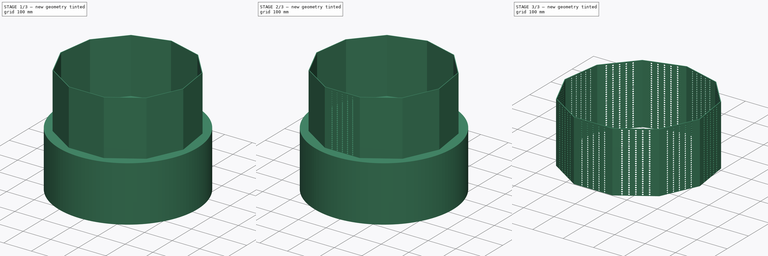
[diagram: build sequence overview — one tinted view per stage of 3, left to right]
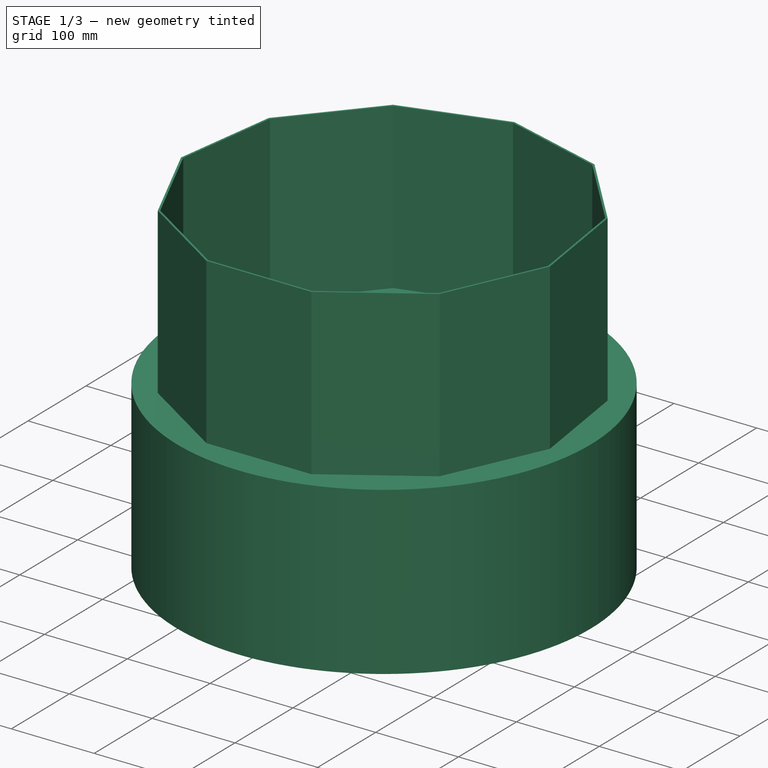
[diagram: stage 1 of 3 — iso view after this stage's code; geometry added in this stage tinted green]
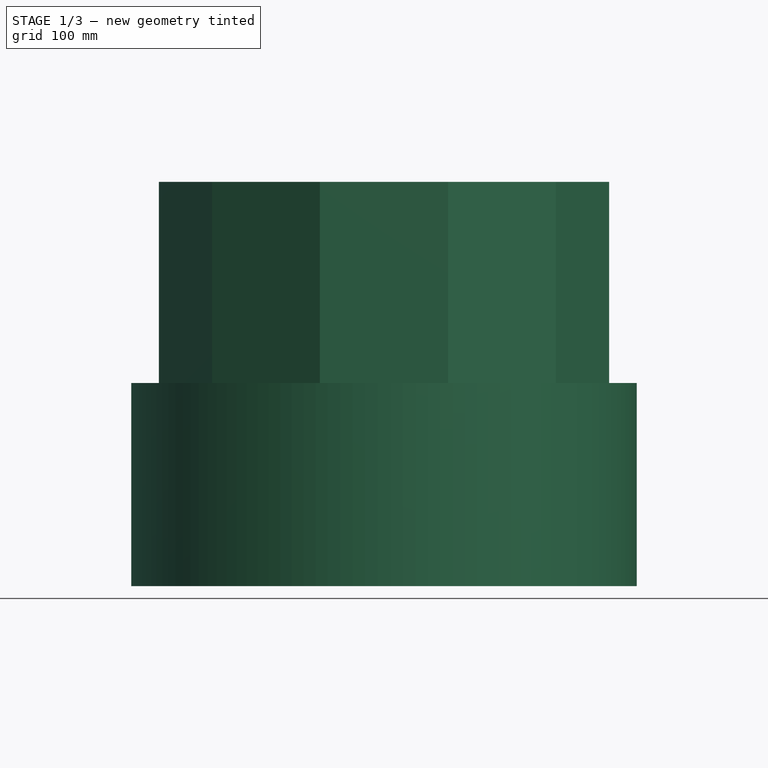
[diagram: stage 1 of 3 — front view after this stage's code; geometry added in this stage tinted green]
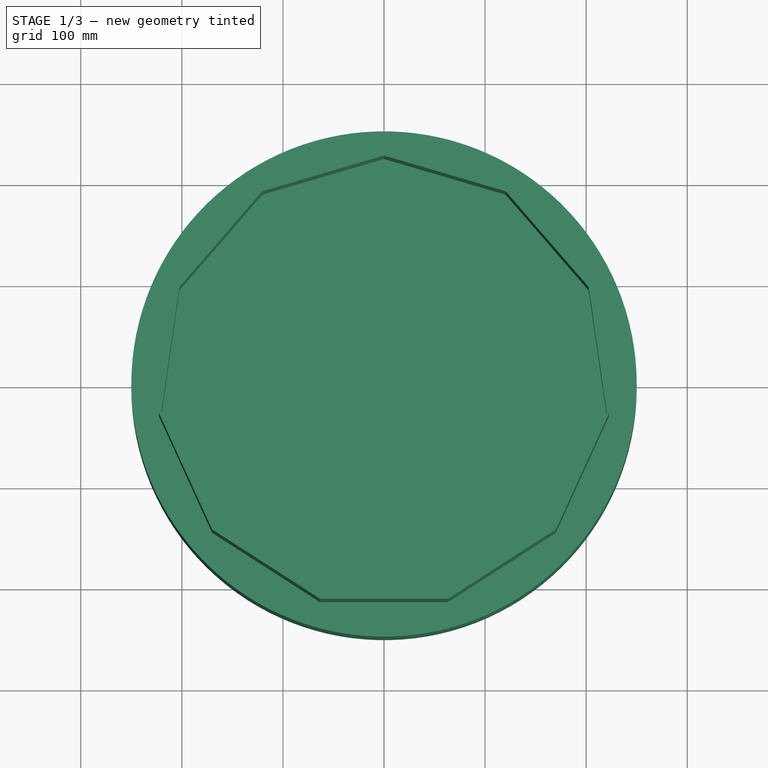
[diagram: stage 1 of 3 — top view after this stage's code; geometry added in this stage tinted green]
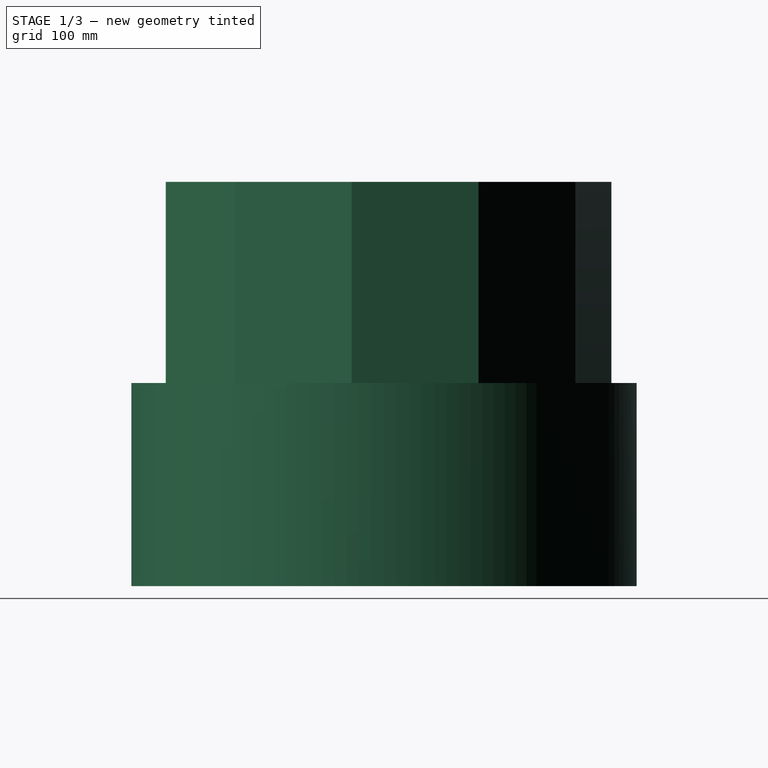
[diagram: stage 1 of 3 — right view after this stage's code; geometry added in this stage tinted green]
FCSTD DOCUMENT  (FreeCAD 0.18R16110 (Git))
Label: Fuckingdrum_v2
License: All rights reserved
LicenseURL: http://en.wikipedia.org/wiki/All_rights_reserved
objects: Sketcher::SketchObject×2, PartDesign::Pad×1, PartDesign::Pocket×1, PartDesign::PolarPattern×1, PartDesign::Body×1, Part::Cylinder×1, Part::Cut×1
note: 10 computed .brp shape members not serialized (recipe doc carries the construction recipe); baked Part::Feature solids carry a one-line shape summary decoded from their .brp

FEATURE [Sketcher::SketchObject] Sketch
  MapMode = 5
  Support = -> [XY_Plane]
  sketch-geometry (24):
    g0: LineSegment StartX=0 StartY=222.6 StartZ=0 EndX=-120.347 EndY=187.263 EndZ=0
    g1: LineSegment StartX=-120.347 StartY=187.263 StartZ=0 EndX=-202.484 EndY=92.4714 EndZ=0
    g2: LineSegment StartX=-202.484 StartY=92.4714 StartZ=0 EndX=-220.334 EndY=-31.6793 EndZ=0
    g3: LineSegment StartX=-220.334 StartY=-31.6793 StartZ=0 EndX=-168.23 EndY=-145.772 EndZ=0
    g4: LineSegment StartX=-168.23 StartY=-145.772 StartZ=0 EndX=-62.7137 EndY=-213.583 EndZ=0
    g5: LineSegment StartX=-62.7137 StartY=-213.583 StartZ=0 EndX=62.7137 EndY=-213.583 EndZ=0
    g6: LineSegment StartX=62.7137 StartY=-213.583 StartZ=0 EndX=168.23 EndY=-145.772 EndZ=0
    g7: LineSegment StartX=168.23 StartY=-145.772 StartZ=0 EndX=220.334 EndY=-31.6793 EndZ=0
    g8: LineSegment StartX=220.334 StartY=-31.6793 StartZ=0 EndX=202.484 EndY=92.4714 EndZ=0
    g9: LineSegment StartX=202.484 StartY=92.4714 StartZ=0 EndX=120.347 EndY=187.263 EndZ=0
    g10: LineSegment StartX=120.347 StartY=187.263 StartZ=0 EndX=0 EndY=222.6 EndZ=0
    g11: Circle [constr] CenterX=0 CenterY=0 CenterZ=0 NormalX=0 NormalY=0 NormalZ=1 AngleXU=0 Radius=222.6
    g12: LineSegment StartX=0 StartY=225 StartZ=0 EndX=-121.644 EndY=189.282 EndZ=0
    g13: LineSegment StartX=-121.644 StartY=189.282 StartZ=0 EndX=-204.667 EndY=93.4684 EndZ=0
    g14: LineSegment StartX=-204.667 StartY=93.4684 StartZ=0 EndX=-222.71 EndY=-32.0208 EndZ=0
    g15: LineSegment StartX=-222.71 StartY=-32.0208 StartZ=0 EndX=-170.044 EndY=-147.344 EndZ=0
    g16: LineSegment StartX=-170.044 StartY=-147.344 StartZ=0 EndX=-63.3898 EndY=-215.886 EndZ=0
    g17: LineSegment StartX=-63.3898 StartY=-215.886 StartZ=0 EndX=63.3898 EndY=-215.886 EndZ=0
    g18: LineSegment StartX=63.3898 StartY=-215.886 StartZ=0 EndX=170.044 EndY=-147.344 EndZ=0
    g19: LineSegment StartX=170.044 StartY=-147.344 StartZ=0 EndX=222.71 EndY=-32.0208 EndZ=0
    g20: LineSegment StartX=222.71 StartY=-32.0208 StartZ=0 EndX=204.667 EndY=93.4684 EndZ=0
    g21: LineSegment StartX=204.667 StartY=93.4684 StartZ=0 EndX=121.644 EndY=189.282 EndZ=0
    g22: LineSegment StartX=121.644 StartY=189.282 StartZ=0 EndX=0 EndY=225 EndZ=0
    g23: Circle [constr] CenterX=0 CenterY=0 CenterZ=0 NormalX=0 NormalY=0 NormalZ=1 AngleXU=0 Radius=225
  constraints (52):
    c: Coincident(g0,g1)
    c: Coincident(g1,g2)
    c: Coincident(g2,g3)
    c: Coincident(g3,g4)
    c: Coincident(g4,g5)
    c: Coincident(g5,g6)
    c: Coincident(g6,g7)
    c: Coincident(g7,g8)
    c: Coincident(g8,g9)
    c: Coincident(g9,g10)
    c: Coincident(g10,g0)
    c: Equal(g0, g1-g10) x10
    c: PointOnObject(g0,g11)
    c: PointOnObject(g1,g11)
    c: PointOnObject(g2,g11)
    c: PointOnObject(g3,g11)
    c: PointOnObject(g4,g11)
    c: PointOnObject(g5,g11)
    c: PointOnObject(g6,g11)
    c: PointOnObject(g7,g11)
    c: PointOnObject(g8,g11)
    c: PointOnObject(g9,g11)
    c: PointOnObject(g10,g11)
    c: Coincident(g11,g-1)
    c: PointOnObject(g10,g-2)
    c: Radius(g11) = 222.6
    c: Coincident(g12,g13)
    c: Coincident(g13,g14)
    c: Coincident(g14,g15)
    c: Coincident(g15,g16)
    c: Coincident(g16,g17)
    c: Coincident(g17,g18)
    c: Coincident(g18,g19)
    c: Coincident(g19,g20)
    c: Coincident(g20,g21)
    c: Coincident(g21,g22)
    c: Coincident(g22,g12)
    c: Equal(g12, g13-g22) x10
    c: PointOnObject(g12,g23)
    c: PointOnObject(g13,g23)
    c: PointOnObject(g14,g23)
    c: PointOnObject(g15,g23)
    c: PointOnObject(g16,g23)
    c: PointOnObject(g17,g23)
    c: PointOnObject(g18,g23)
    c: PointOnObject(g19,g23)
    c: PointOnObject(g20,g23)
    c: PointOnObject(g21,g23)
    c: PointOnObject(g22,g23)
    c: PointOnObject(g22,g-2)
    c: Radius(g23) = 225
    c: Coincident(g23,g-1)
FEATURE [PartDesign::Pad] Pad
  Length = 400
  Length2 = 100
  Profile = -> Sketch
  Type = 0
FEATURE [PartDesign::Body] Body
  Group = -> [Sketch,Pad,Sketch001,Pocket,PolarPattern]
  Origin = -> Origin
  Tip = -> PolarPattern
FEATURE [Part::Cylinder] Cylinder
  Angle = 360
  AttacherType = Attacher::AttachEngine3D
  Height = 201
  Radius = 250
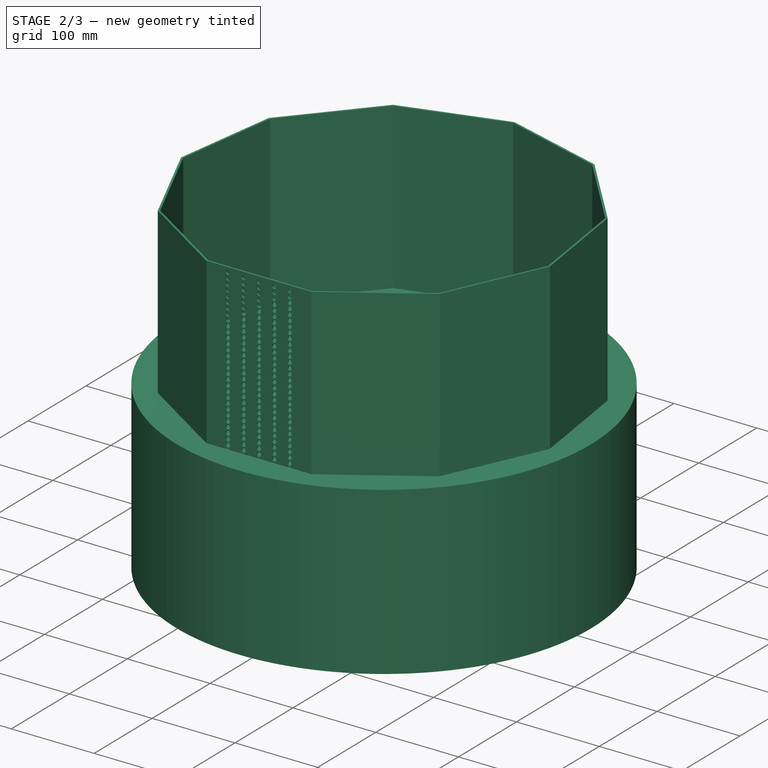
[diagram: stage 2 of 3 — iso view after this stage's code; geometry added in this stage tinted green]
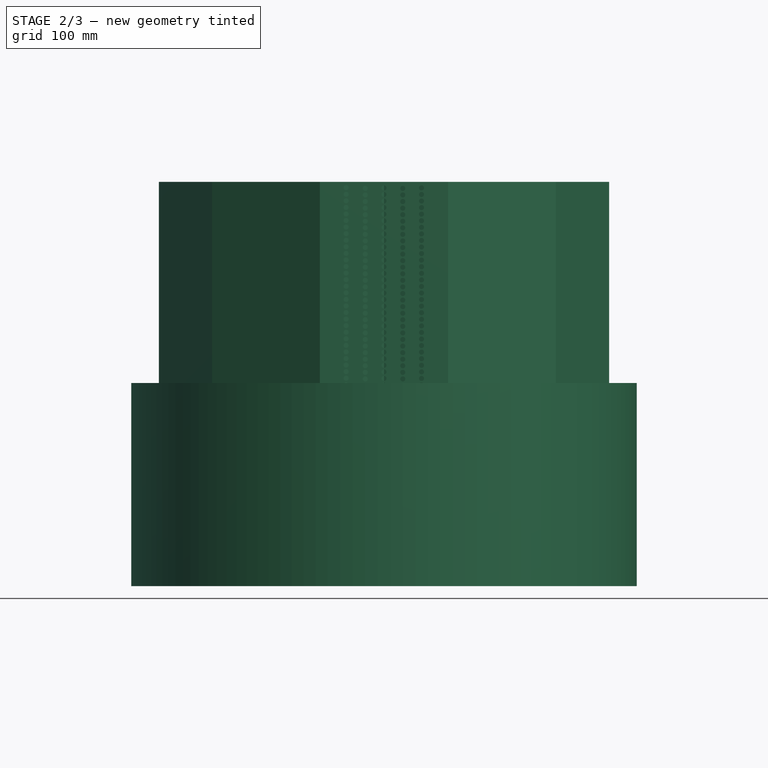
[diagram: stage 2 of 3 — front view after this stage's code; geometry added in this stage tinted green]
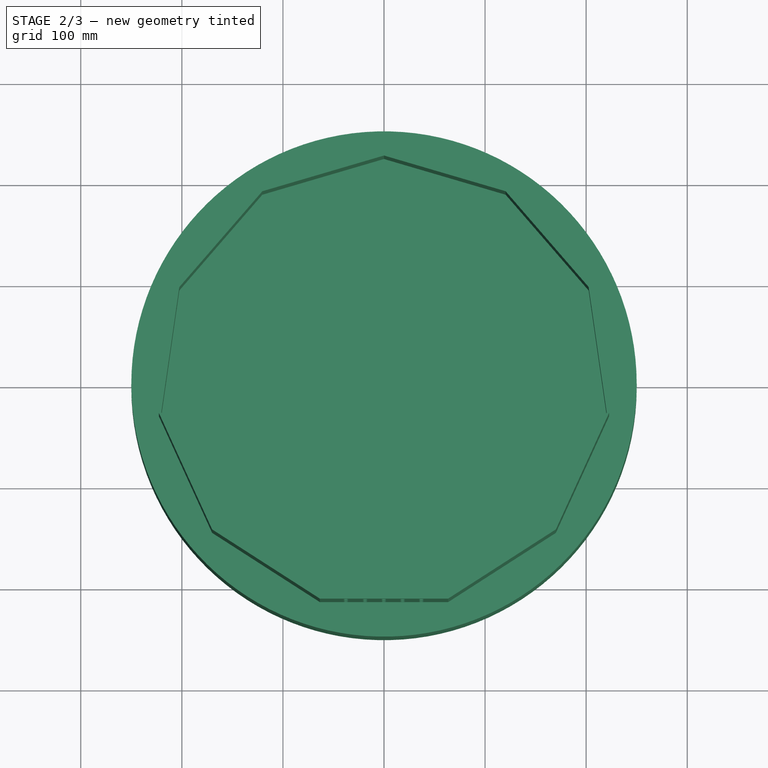
[diagram: stage 2 of 3 — top view after this stage's code; geometry added in this stage tinted green]
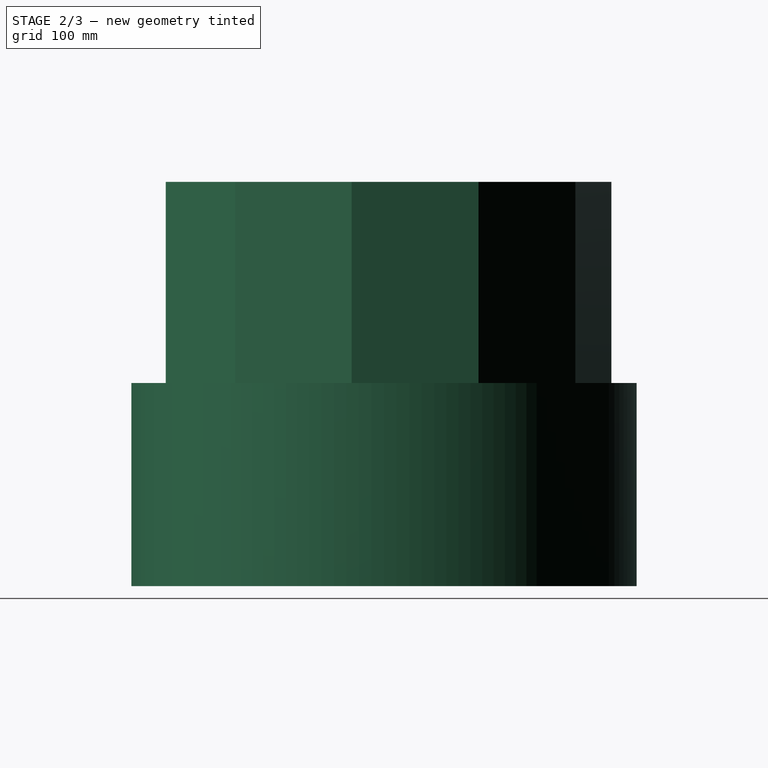
[diagram: stage 2 of 3 — right view after this stage's code; geometry added in this stage tinted green]
FEATURE [Sketcher::SketchObject] Sketch001
  MapMode = 5
  Placement = pos=(4.75e-14,-215.886,0) rot=(1,0,0;1.5708rad)
  Support = -> [Pad]
  sketch-geometry (306):
    g0: LineSegment [constr] StartX=0 StartY=0 StartZ=0 EndX=0 EndY=387.5 EndZ=0
    g1: Circle CenterX=0 CenterY=4 CenterZ=0 NormalX=0 NormalY=0 NormalZ=1 AngleXU=0 Radius=2.5
    g2: Circle CenterX=0 CenterY=10.5 CenterZ=0 NormalX=0 NormalY=0 NormalZ=1 AngleXU=0 Radius=2.5
    g3: Circle CenterX=0 CenterY=17 CenterZ=0 NormalX=0 NormalY=0 NormalZ=1 AngleXU=0 Radius=2.5
    g4: Circle CenterX=0 CenterY=23.5 CenterZ=0 NormalX=0 NormalY=0 NormalZ=1 AngleXU=0 Radius=2.5
    g5: Circle CenterX=0 CenterY=30 CenterZ=0 NormalX=0 NormalY=0 NormalZ=1 AngleXU=0 Radius=2.5
    g6: Circle CenterX=0 CenterY=36.5 CenterZ=0 NormalX=0 NormalY=0 NormalZ=1 AngleXU=0 Radius=2.5
    g7: Circle CenterX=0 CenterY=43 CenterZ=0 NormalX=0 NormalY=0 NormalZ=1 AngleXU=0 Radius=2.5
    g8: Circle CenterX=0 CenterY=49.5 CenterZ=0 NormalX=0 NormalY=0 NormalZ=1 AngleXU=0 Radius=2.5
    g9: Circle CenterX=0 CenterY=56 CenterZ=0 NormalX=0 NormalY=0 NormalZ=1 AngleXU=0 Radius=2.5
    g10: Circle CenterX=0 CenterY=62.5 CenterZ=0 NormalX=0 NormalY=0 NormalZ=1 AngleXU=0 Radius=2.5
    g11: Circle CenterX=0 CenterY=69 CenterZ=0 NormalX=0 NormalY=0 NormalZ=1 AngleXU=0 Radius=2.5
    g12: Circle CenterX=0 CenterY=75.5 CenterZ=0 NormalX=0 NormalY=0 NormalZ=1 AngleXU=0 Radius=2.5
    g13: Circle CenterX=0 CenterY=82 CenterZ=0 NormalX=0 NormalY=0 NormalZ=1 AngleXU=0 Radius=2.5
    g14: Circle CenterX=0 CenterY=88.5 CenterZ=0 NormalX=0 NormalY=0 NormalZ=1 AngleXU=0 Radius=2.5
    g15: Circle CenterX=0 CenterY=95 CenterZ=0 NormalX=0 NormalY=0 NormalZ=1 AngleXU=0 Radius=2.5
    g16: Circle CenterX=0 CenterY=101.5 CenterZ=0 NormalX=0 NormalY=0 NormalZ=1 AngleXU=0 Radius=2.5
    g17: Circle CenterX=0 CenterY=108 CenterZ=0 NormalX=0 NormalY=0 NormalZ=1 AngleXU=0 Radius=2.5
    g18: Circle CenterX=0 CenterY=114.5 CenterZ=0 NormalX=0 NormalY=0 NormalZ=1 AngleXU=0 Radius=2.5
    g19: Circle CenterX=0 CenterY=121 CenterZ=0 NormalX=0 NormalY=0 NormalZ=1 AngleXU=0 Radius=2.5
    g20: Circle CenterX=0 CenterY=127.5 CenterZ=0 NormalX=0 NormalY=0 NormalZ=1 AngleXU=0 Radius=2.5
    g21: Circle CenterX=0 CenterY=134 CenterZ=0 NormalX=0 NormalY=0 NormalZ=1 AngleXU=0 Radius=2.5
    g22: Circle CenterX=0 CenterY=140.5 CenterZ=0 NormalX=0 NormalY=0 NormalZ=1 AngleXU=0 Radius=2.5
    g23: Circle CenterX=0 CenterY=147 CenterZ=0 NormalX=0 NormalY=0 NormalZ=1 AngleXU=0 Radius=2.5
    g24: Circle CenterX=0 CenterY=153.5 CenterZ=0 NormalX=0 NormalY=0 NormalZ=1 AngleXU=0 Radius=2.5
    g25: Circle CenterX=0 CenterY=160 CenterZ=0 NormalX=0 NormalY=0 NormalZ=1 AngleXU=0 Radius=2.5
    g26: Circle CenterX=0 CenterY=166.5 CenterZ=0 NormalX=0 NormalY=0 NormalZ=1 AngleXU=0 Radius=2.5
    g27: Circle CenterX=0 CenterY=173 CenterZ=0 NormalX=0 NormalY=0 NormalZ=1 AngleXU=0 Radius=2.5
    g28: Circle CenterX=0.122363 CenterY=179.5 CenterZ=0 NormalX=0 NormalY=0 NormalZ=1 AngleXU=0 Radius=2.5
    g29: Circle CenterX=0 CenterY=186 CenterZ=0 NormalX=0 NormalY=0 NormalZ=1 AngleXU=0 Radius=2.5
    g30: Circle CenterX=0 CenterY=192.5 CenterZ=0 NormalX=0 NormalY=0 NormalZ=1 AngleXU=0 Radius=2.5
    g31: Circle CenterX=0 CenterY=199 CenterZ=0 NormalX=0 NormalY=0 NormalZ=1 AngleXU=0 Radius=2.5
    g32: Circle CenterX=0 CenterY=205.5 CenterZ=0 NormalX=0 NormalY=0 NormalZ=1 AngleXU=0 Radius=2.5
    g33: Circle CenterX=0 CenterY=212 CenterZ=0 NormalX=0 NormalY=0 NormalZ=1 AngleXU=0 Radius=2.5
    g34: Circle CenterX=0 CenterY=218.5 CenterZ=0 NormalX=0 NormalY=0 NormalZ=1 AngleXU=0 Radius=2.5
    g35: Circle CenterX=0 CenterY=225 CenterZ=0 NormalX=0 NormalY=0 NormalZ=1 AngleXU=0 Radius=2.5
    g36: Circle CenterX=0 CenterY=231.5 CenterZ=0 NormalX=0 NormalY=0 NormalZ=1 AngleXU=0 Radius=2.5
    g37: Circle CenterX=0 CenterY=238 CenterZ=0 NormalX=0 NormalY=0 NormalZ=1 AngleXU=0 Radius=2.5
    g38: Circle CenterX=0 CenterY=244.5 CenterZ=0 NormalX=0 NormalY=0 NormalZ=1 AngleXU=0 Radius=2.5
    g39: Circle CenterX=0 CenterY=251 CenterZ=0 NormalX=0 NormalY=0 NormalZ=1 AngleXU=0 Radius=2.5
    g40: Circle CenterX=0 CenterY=257.5 CenterZ=0 NormalX=0 NormalY=0 NormalZ=1 AngleXU=0 Radius=2.5
    g41: Circle CenterX=0 CenterY=264 CenterZ=0 NormalX=0 NormalY=0 NormalZ=1 AngleXU=0 Radius=2.5
    g42: Circle CenterX=0 CenterY=270.5 CenterZ=0 NormalX=0 NormalY=0 NormalZ=1 AngleXU=0 Radius=2.5
    g43: Circle CenterX=0 CenterY=277 CenterZ=0 NormalX=0 NormalY=0 NormalZ=1 AngleXU=0 Radius=2.5
    g44: Circle CenterX=0 CenterY=283.5 CenterZ=0 NormalX=0 NormalY=0 NormalZ=1 AngleXU=0 Radius=2.5
    g45: Circle CenterX=0 CenterY=290 CenterZ=0 NormalX=0 NormalY=0 NormalZ=1 AngleXU=0 Radius=2.5
    g46: Circle CenterX=0 CenterY=296.5 CenterZ=0 NormalX=0 NormalY=0 NormalZ=1 AngleXU=0 Radius=2.5
    g47: Circle CenterX=0 CenterY=303 CenterZ=0 NormalX=0 NormalY=0 NormalZ=1 AngleXU=0 Radius=2.5
    g48: Circle CenterX=0 CenterY=309.5 CenterZ=0 NormalX=0 NormalY=0 NormalZ=1 AngleXU=0 Radius=2.5
    g49: Circle CenterX=0 CenterY=316 CenterZ=0 NormalX=0 NormalY=0 NormalZ=1 AngleXU=0 Radius=2.5
    g50: Circle CenterX=0 CenterY=322.5 CenterZ=0 NormalX=0 NormalY=0 NormalZ=1 AngleXU=0 Radius=2.5
    g51: Circle CenterX=0 CenterY=329 CenterZ=0 NormalX=0 NormalY=0 NormalZ=1 AngleXU=0 Radius=2.5
    g52: Circle CenterX=0 CenterY=335.5 CenterZ=0 NormalX=0 NormalY=0 NormalZ=1 AngleXU=0 Radius=2.5
    g53: Circle CenterX=0 CenterY=342 CenterZ=0 NormalX=0 NormalY=0 NormalZ=1 AngleXU=0 Radius=2.5
    g54: Circle CenterX=0 CenterY=348.5 CenterZ=0 NormalX=0 NormalY=0 NormalZ=1 AngleXU=0 Radius=2.5
    g55: Circle CenterX=0 CenterY=355 CenterZ=0 NormalX=0 NormalY=0 NormalZ=1 AngleXU=0 Radius=2.5
    g56: Circle CenterX=0 CenterY=361.5 CenterZ=0 NormalX=0 NormalY=0 NormalZ=1 AngleXU=0 Radius=2.5
    g57: Circle CenterX=0 CenterY=368 CenterZ=0 NormalX=0 NormalY=0 NormalZ=1 AngleXU=0 Radius=2.5
    g58: Circle CenterX=0 CenterY=374.5 CenterZ=0 NormalX=0 NormalY=0 NormalZ=1 AngleXU=0 Radius=2.5
    g59: Circle CenterX=0 CenterY=381 CenterZ=0 NormalX=0 NormalY=0 NormalZ=1 AngleXU=0 Radius=2.5
    g60: Circle CenterX=0 CenterY=387.5 CenterZ=0 NormalX=0 NormalY=0 NormalZ=1 AngleXU=0 Radius=2.5
    g61: Circle CenterX=0 CenterY=394 CenterZ=0 NormalX=0 NormalY=0 NormalZ=1 AngleXU=0 Radius=2.5
    g62: Circle CenterX=-37.5092 CenterY=4.22818 CenterZ=0 NormalX=0 NormalY=0 NormalZ=1 AngleXU=0 Radius=2.5
    g63: Circle CenterX=-37.5092 CenterY=10.7282 CenterZ=0 NormalX=0 NormalY=0 NormalZ=1 AngleXU=0 Radius=2.5
    g64: Circle CenterX=-37.5092 CenterY=17.2282 CenterZ=0 NormalX=0 NormalY=0 NormalZ=1 AngleXU=0 Radius=2.5
    g65: Circle CenterX=-37.5092 CenterY=23.7282 CenterZ=0 NormalX=0 NormalY=0 NormalZ=1 AngleXU=0 Radius=2.5
    g66: Circle CenterX=-37.5092 CenterY=30.2282 CenterZ=0 NormalX=0 NormalY=0 NormalZ=1 AngleXU=0 Radius=2.5
    g67: Circle CenterX=-37.5092 CenterY=36.7282 CenterZ=0 NormalX=0 NormalY=0 NormalZ=1 AngleXU=0 Radius=2.5
    g68: Circle CenterX=-37.5092 CenterY=43.2282 CenterZ=0 NormalX=0 NormalY=0 NormalZ=1 AngleXU=0 Radius=2.5
    g69: Circle CenterX=-37.5092 CenterY=49.7282 CenterZ=0 NormalX=0 NormalY=0 NormalZ=1 AngleXU=0 Radius=2.5
    g70: Circle CenterX=-37.5092 CenterY=56.2282 CenterZ=0 NormalX=0 NormalY=0 NormalZ=1 AngleXU=0 Radius=2.5
    g71: Circle CenterX=-37.5092 CenterY=62.7282 CenterZ=0 NormalX=0 NormalY=0 NormalZ=1 AngleXU=0 Radius=2.5
    g72: Circle CenterX=-37.5092 CenterY=69.2282 CenterZ=0 NormalX=0 NormalY=0 NormalZ=1 AngleXU=0 Radius=2.5
    g73: Circle CenterX=-37.5092 CenterY=75.7282 CenterZ=0 NormalX=0 NormalY=0 NormalZ=1 AngleXU=0 Radius=2.5
    g74: Circle CenterX=-37.5092 CenterY=82.2282 CenterZ=0 NormalX=0 NormalY=0 NormalZ=1 AngleXU=0 Radius=2.5
    g75: Circle CenterX=-37.5092 CenterY=88.7282 CenterZ=0 NormalX=0 NormalY=0 NormalZ=1 AngleXU=0 Radius=2.5
    g76: Circle CenterX=-37.5092 CenterY=95.2282 CenterZ=0 NormalX=0 NormalY=0 NormalZ=1 AngleXU=0 Radius=2.5
    g77: Circle CenterX=-37.5092 CenterY=101.728 CenterZ=0 NormalX=0 NormalY=0 NormalZ=1 AngleXU=0 Radius=2.5
    g78: Circle CenterX=-37.5092 CenterY=108.228 CenterZ=0 NormalX=0 NormalY=0 NormalZ=1 AngleXU=0 Radius=2.5
    g79: Circle CenterX=-37.5092 CenterY=114.728 CenterZ=0 NormalX=0 NormalY=0 NormalZ=1 AngleXU=0 Radius=2.5
    g80: Circle CenterX=-37.5092 CenterY=121.228 CenterZ=0 NormalX=0 NormalY=0 NormalZ=1 AngleXU=0 Radius=2.5
    g81: Circle CenterX=-37.5092 CenterY=127.728 CenterZ=0 NormalX=0 NormalY=0 NormalZ=1 AngleXU=0 Radius=2.5
    g82: Circle CenterX=-37.5092 CenterY=134.228 CenterZ=0 NormalX=0 NormalY=0 NormalZ=1 AngleXU=0 Radius=2.5
    g83: Circle CenterX=-37.5092 CenterY=140.728 CenterZ=0 NormalX=0 NormalY=0 NormalZ=1 AngleXU=0 Radius=2.5
    g84: Circle CenterX=-37.5092 CenterY=147.228 CenterZ=0 NormalX=0 NormalY=0 NormalZ=1 AngleXU=0 Radius=2.5
    g85: Circle CenterX=-37.5092 CenterY=153.728 CenterZ=0 NormalX=0 NormalY=0 NormalZ=1 AngleXU=0 Radius=2.5
    g86: Circle CenterX=-37.5092 CenterY=160.228 CenterZ=0 NormalX=0 NormalY=0 NormalZ=1 AngleXU=0 Radius=2.5
    g87: Circle CenterX=-37.5092 CenterY=166.728 CenterZ=0 NormalX=0 NormalY=0 NormalZ=1 AngleXU=0 Radius=2.5
    g88: Circle CenterX=-37.5092 CenterY=173.228 CenterZ=0 NormalX=0 NormalY=0 NormalZ=1 AngleXU=0 Radius=2.5
    g89: Circle CenterX=-37.3868 CenterY=179.728 CenterZ=0 NormalX=0 NormalY=0 NormalZ=1 AngleXU=0 Radius=2.5
    g90: Circle CenterX=-37.5092 CenterY=186.228 CenterZ=0 NormalX=0 NormalY=0 NormalZ=1 AngleXU=0 Radius=2.5
    g91: Circle CenterX=-37.5092 CenterY=192.728 CenterZ=0 NormalX=0 NormalY=0 NormalZ=1 AngleXU=0 Radius=2.5
    g92: Circle CenterX=-37.5092 CenterY=199.228 CenterZ=0 NormalX=0 NormalY=0 NormalZ=1 AngleXU=0 Radius=2.5
    g93: Circle CenterX=-37.5092 CenterY=205.728 CenterZ=0 NormalX=0 NormalY=0 NormalZ=1 AngleXU=0 Radius=2.5
    g94: Circle CenterX=-37.5092 CenterY=212.228 CenterZ=0 NormalX=0 NormalY=0 NormalZ=1 AngleXU=0 Radius=2.5
    g95: Circle CenterX=-37.5092 CenterY=218.728 CenterZ=0 NormalX=0 NormalY=0 NormalZ=1 AngleXU=0 Radius=2.5
    g96: Circle CenterX=-37.5092 CenterY=225.228 CenterZ=0 NormalX=0 NormalY=0 NormalZ=1 AngleXU=0 Radius=2.5
    g97: Circle CenterX=-37.5092 CenterY=231.728 CenterZ=0 NormalX=0 NormalY=0 NormalZ=1 AngleXU=0 Radius=2.5
    g98: Circle CenterX=-37.5092 CenterY=238.228 CenterZ=0 NormalX=0 NormalY=0 NormalZ=1 AngleXU=0 Radius=2.5
    g99: Circle CenterX=-37.5092 CenterY=244.728 CenterZ=0 NormalX=0 NormalY=0 NormalZ=1 AngleXU=0 Radius=2.5
    g100: Circle CenterX=-37.5092 CenterY=251.228 CenterZ=0 NormalX=0 NormalY=0 NormalZ=1 AngleXU=0 Radius=2.5
    g101: Circle CenterX=-37.5092 CenterY=257.728 CenterZ=0 NormalX=0 NormalY=0 NormalZ=1 AngleXU=0 Radius=2.5
    g102: Circle CenterX=-37.5092 CenterY=264.228 CenterZ=0 NormalX=0 NormalY=0 NormalZ=1 AngleXU=0 Radius=2.5
    g103: Circle CenterX=-37.5092 CenterY=270.728 CenterZ=0 NormalX=0 NormalY=0 NormalZ=1 AngleXU=0 Radius=2.5
    g104: Circle CenterX=-37.5092 CenterY=277.228 CenterZ=0 NormalX=0 NormalY=0 NormalZ=1 AngleXU=0 Radius=2.5
    g105: Circle CenterX=-37.5092 CenterY=283.728 CenterZ=0 NormalX=0 NormalY=0 NormalZ=1 AngleXU=0 Radius=2.5
    g106: Circle CenterX=-37.5092 CenterY=290.228 CenterZ=0 NormalX=0 NormalY=0 NormalZ=1 AngleXU=0 Radius=2.5
    g107: Circle CenterX=-37.5092 CenterY=296.728 CenterZ=0 NormalX=0 NormalY=0 NormalZ=1 AngleXU=0 Radius=2.5
    g108: Circle CenterX=-37.5092 CenterY=303.228 CenterZ=0 NormalX=0 NormalY=0 NormalZ=1 AngleXU=0 Radius=2.5
    g109: Circle CenterX=-37.5092 CenterY=309.728 CenterZ=0 NormalX=0 NormalY=0 NormalZ=1 AngleXU=0 Radius=2.5
    g110: Circle CenterX=-37.5092 CenterY=316.228 CenterZ=0 NormalX=0 NormalY=0 NormalZ=1 AngleXU=0 Radius=2.5
    g111: Circle CenterX=-37.5092 CenterY=322.728 CenterZ=0 NormalX=0 NormalY=0 NormalZ=1 AngleXU=0 Radius=2.5
    g112: Circle CenterX=-37.5092 CenterY=329.228 CenterZ=0 NormalX=0 NormalY=0 NormalZ=1 AngleXU=0 Radius=2.5
    g113: Circle CenterX=-37.5092 CenterY=335.728 CenterZ=0 NormalX=0 NormalY=0 NormalZ=1 AngleXU=0 Radius=2.5
    g114: Circle CenterX=-37.5092 CenterY=342.228 CenterZ=0 NormalX=0 NormalY=0 NormalZ=1 AngleXU=0 Radius=2.5
    g115: Circle CenterX=-37.5092 CenterY=348.728 CenterZ=0 NormalX=0 NormalY=0 NormalZ=1 AngleXU=0 Radius=2.5
    g116: Circle CenterX=-37.5092 CenterY=355.228 CenterZ=0 NormalX=0 NormalY=0 NormalZ=1 AngleXU=0 Radius=2.5
    g117: Circle CenterX=-37.5092 CenterY=361.728 CenterZ=0 NormalX=0 NormalY=0 NormalZ=1 AngleXU=0 Radius=2.5
    g118: Circle CenterX=-37.5092 CenterY=368.228 CenterZ=0 NormalX=0 NormalY=0 NormalZ=1 AngleXU=0 Radius=2.5
    g119: Circle CenterX=-37.5092 CenterY=374.728 CenterZ=0 NormalX=0 NormalY=0 NormalZ=1 AngleXU=0 Radius=2.5
    g120: Circle CenterX=-37.5092 CenterY=381.228 CenterZ=0 NormalX=0 NormalY=0 NormalZ=1 AngleXU=0 Radius=2.5
    g121: Circle CenterX=-37.5092 CenterY=387.728 CenterZ=0 NormalX=0 NormalY=0 NormalZ=1 AngleXU=0 Radius=2.5
    g122: Circle CenterX=-37.5092 CenterY=394.228 CenterZ=0 NormalX=0 NormalY=0 NormalZ=1 AngleXU=0 Radius=2.5
    g123: Circle CenterX=37.1207 CenterY=4.0264 CenterZ=0 NormalX=0 NormalY=0 NormalZ=1 AngleXU=0 Radius=2.5
    g124: Circle CenterX=37.1207 CenterY=10.5264 CenterZ=0 NormalX=0 NormalY=0 NormalZ=1 AngleXU=0 Radius=2.5
    g125: Circle CenterX=37.1207 CenterY=17.0264 CenterZ=0 NormalX=0 NormalY=0 NormalZ=1 AngleXU=0 Radius=2.5
    g126: Circle CenterX=37.1207 CenterY=23.5264 CenterZ=0 NormalX=0 NormalY=0 NormalZ=1 AngleXU=0 Radius=2.5
    g127: Circle CenterX=37.1207 CenterY=30.0264 CenterZ=0 NormalX=0 NormalY=0 NormalZ=1 AngleXU=0 Radius=2.5
    g128: Circle CenterX=37.1207 CenterY=36.5264 CenterZ=0 NormalX=0 NormalY=0 NormalZ=1 AngleXU=0 Radius=2.5
    g129: Circle CenterX=37.1207 CenterY=43.0264 CenterZ=0 NormalX=0 NormalY=0 NormalZ=1 AngleXU=0 Radius=2.5
    g130: Circle CenterX=37.1207 CenterY=49.5264 CenterZ=0 NormalX=0 NormalY=0 NormalZ=1 AngleXU=0 Radius=2.5
    g131: Circle CenterX=37.1207 CenterY=56.0264 CenterZ=0 NormalX=0 NormalY=0 NormalZ=1 AngleXU=0 Radius=2.5
    g132: Circle CenterX=37.1207 CenterY=62.5264 CenterZ=0 NormalX=0 NormalY=0 NormalZ=1 AngleXU=0 Radius=2.5
    g133: Circle CenterX=37.1207 CenterY=69.0264 CenterZ=0 NormalX=0 NormalY=0 NormalZ=1 AngleXU=0 Radius=2.5
    g134: Circle CenterX=37.1207 CenterY=75.5264 CenterZ=0 NormalX=0 NormalY=0 NormalZ=1 AngleXU=0 Radius=2.5
    g135: Circle CenterX=37.1207 CenterY=82.0264 CenterZ=0 NormalX=0 NormalY=0 NormalZ=1 AngleXU=0 Radius=2.5
    g136: Circle CenterX=37.1207 CenterY=88.5264 CenterZ=0 NormalX=0 NormalY=0 NormalZ=1 AngleXU=0 Radius=2.5
    g137: Circle CenterX=37.1207 CenterY=95.0264 CenterZ=0 NormalX=0 NormalY=0 NormalZ=1 AngleXU=0 Radius=2.5
    g138: Circle CenterX=37.1207 CenterY=101.526 CenterZ=0 NormalX=0 NormalY=0 NormalZ=1 AngleXU=0 Radius=2.5
    g139: Circle CenterX=37.1207 CenterY=108.026 CenterZ=0 NormalX=0 NormalY=0 NormalZ=1 AngleXU=0 Radius=2.5
    g140: Circle CenterX=37.1207 CenterY=114.526 CenterZ=0 NormalX=0 NormalY=0 NormalZ=1 AngleXU=0 Radius=2.5
    g141: Circle CenterX=37.1207 CenterY=121.026 CenterZ=0 NormalX=0 NormalY=0 NormalZ=1 AngleXU=0 Radius=2.5
    g142: Circle CenterX=37.1207 CenterY=127.526 CenterZ=0 NormalX=0 NormalY=0 NormalZ=1 AngleXU=0 Radius=2.5
    g143: Circle CenterX=37.1207 CenterY=134.026 CenterZ=0 NormalX=0 NormalY=0 NormalZ=1 AngleXU=0 Radius=2.5
    g144: Circle CenterX=37.1207 CenterY=140.526 CenterZ=0 NormalX=0 NormalY=0 NormalZ=1 AngleXU=0 Radius=2.5
    g145: Circle CenterX=37.1207 CenterY=147.026 CenterZ=0 NormalX=0 NormalY=0 NormalZ=1 AngleXU=0 Radius=2.5
    g146: Circle CenterX=37.1207 CenterY=153.526 CenterZ=0 NormalX=0 NormalY=0 NormalZ=1 AngleXU=0 Radius=2.5
    g147: Circle CenterX=37.1207 CenterY=160.026 CenterZ=0 NormalX=0 NormalY=0 NormalZ=1 AngleXU=0 Radius=2.5
    g148: Circle CenterX=37.1207 CenterY=166.526 CenterZ=0 NormalX=0 NormalY=0 NormalZ=1 AngleXU=0 Radius=2.5
    g149: Circle CenterX=37.1207 CenterY=173.026 CenterZ=0 NormalX=0 NormalY=0 NormalZ=1 AngleXU=0 Radius=2.5
    g150: Circle CenterX=37.2431 CenterY=179.526 CenterZ=0 NormalX=0 NormalY=0 NormalZ=1 AngleXU=0 Radius=2.5
    g151: Circle CenterX=37.1207 CenterY=186.026 CenterZ=0 NormalX=0 NormalY=0 NormalZ=1 AngleXU=0 Radius=2.5
    g152: Circle CenterX=37.1207 CenterY=192.526 CenterZ=0 NormalX=0 NormalY=0 NormalZ=1 AngleXU=0 Radius=2.5
    g153: Circle CenterX=37.1207 CenterY=199.026 CenterZ=0 NormalX=0 NormalY=0 NormalZ=1 AngleXU=0 Radius=2.5
    g154: Circle CenterX=37.1207 CenterY=205.526 CenterZ=0 NormalX=0 NormalY=0 NormalZ=1 AngleXU=0 Radius=2.5
    g155: Circle CenterX=37.1207 CenterY=212.026 CenterZ=0 NormalX=0 NormalY=0 NormalZ=1 AngleXU=0 Radius=2.5
    g156: Circle CenterX=37.1207 CenterY=218.526 CenterZ=0 NormalX=0 NormalY=0 NormalZ=1 AngleXU=0 Radius=2.5
    g157: Circle CenterX=37.1207 CenterY=225.026 CenterZ=0 NormalX=0 NormalY=0 NormalZ=1 AngleXU=0 Radius=2.5
    g158: Circle CenterX=37.1207 CenterY=231.526 CenterZ=0 NormalX=0 NormalY=0 NormalZ=1 AngleXU=0 Radius=2.5
    g159: Circle CenterX=37.1207 CenterY=238.026 CenterZ=0 NormalX=0 NormalY=0 NormalZ=1 AngleXU=0 Radius=2.5
    g160: Circle CenterX=37.1207 CenterY=244.526 CenterZ=0 NormalX=0 NormalY=0 NormalZ=1 AngleXU=0 Radius=2.5
    g161: Circle CenterX=37.1207 CenterY=251.026 CenterZ=0 NormalX=0 NormalY=0 NormalZ=1 AngleXU=0 Radius=2.5
    g162: Circle CenterX=37.1207 CenterY=257.526 CenterZ=0 NormalX=0 NormalY=0 NormalZ=1 AngleXU=0 Radius=2.5
    g163: Circle CenterX=37.1207 CenterY=264.026 CenterZ=0 NormalX=0 NormalY=0 NormalZ=1 AngleXU=0 Radius=2.5
    g164: Circle CenterX=37.1207 CenterY=270.526 CenterZ=0 NormalX=0 NormalY=0 NormalZ=1 AngleXU=0 Radius=2.5
    g165: Circle CenterX=37.1207 CenterY=277.026 CenterZ=0 NormalX=0 NormalY=0 NormalZ=1 AngleXU=0 Radius=2.5
    g166: Circle CenterX=37.1207 CenterY=283.526 CenterZ=0 NormalX=0 NormalY=0 NormalZ=1 AngleXU=0 Radius=2.5
    g167: Circle CenterX=37.1207 CenterY=290.026 CenterZ=0 NormalX=0 NormalY=0 NormalZ=1 AngleXU=0 Radius=2.5
    g168: Circle CenterX=37.1207 CenterY=296.526 CenterZ=0 NormalX=0 NormalY=0 NormalZ=1 AngleXU=0 Radius=2.5
    g169: Circle CenterX=37.1207 CenterY=303.026 CenterZ=0 NormalX=0 NormalY=0 NormalZ=1 AngleXU=0 Radius=2.5
    g170: Circle CenterX=37.1207 CenterY=309.526 CenterZ=0 NormalX=0 NormalY=0 NormalZ=1 AngleXU=0 Radius=2.5
    g171: Circle CenterX=37.1207 CenterY=316.026 CenterZ=0 NormalX=0 NormalY=0 NormalZ=1 AngleXU=0 Radius=2.5
    g172: Circle CenterX=37.1207 CenterY=322.526 CenterZ=0 NormalX=0 NormalY=0 NormalZ=1 AngleXU=0 Radius=2.5
    g173: Circle CenterX=37.1207 CenterY=329.026 CenterZ=0 NormalX=0 NormalY=0 NormalZ=1 AngleXU=0 Radius=2.5
    g174: Circle CenterX=37.1207 CenterY=335.526 CenterZ=0 NormalX=0 NormalY=0 NormalZ=1 AngleXU=0 Radius=2.5
    g175: Circle CenterX=37.1207 CenterY=342.026 CenterZ=0 NormalX=0 NormalY=0 NormalZ=1 AngleXU=0 Radius=2.5
    g176: Circle CenterX=37.1207 CenterY=348.526 CenterZ=0 NormalX=0 NormalY=0 NormalZ=1 AngleXU=0 Radius=2.5
    g177: Circle CenterX=37.1207 CenterY=355.026 CenterZ=0 NormalX=0 NormalY=0 NormalZ=1 AngleXU=0 Radius=2.5
    g178: Circle CenterX=37.1207 CenterY=361.526 CenterZ=0 NormalX=0 NormalY=0 NormalZ=1 AngleXU=0 Radius=2.5
    g179: Circle CenterX=37.1207 CenterY=368.026 CenterZ=0 NormalX=0 NormalY=0 NormalZ=1 AngleXU=0 Radius=2.5
    g180: Circle CenterX=37.1207 CenterY=374.526 CenterZ=0 NormalX=0 NormalY=0 NormalZ=1 AngleXU=0 Radius=2.5
    g181: Circle CenterX=37.1207 CenterY=381.026 CenterZ=0 NormalX=0 NormalY=0 NormalZ=1 AngleXU=0 Radius=2.5
    g182: Circle CenterX=37.1207 CenterY=387.526 CenterZ=0 NormalX=0 NormalY=0 NormalZ=1 AngleXU=0 Radius=2.5
    g183: Circle CenterX=37.1207 CenterY=394.026 CenterZ=0 NormalX=0 NormalY=0 NormalZ=1 AngleXU=0 Radius=2.5
    g184: Circle CenterX=-18.5223 CenterY=3.5318 CenterZ=0 NormalX=0 NormalY=0 NormalZ=1 AngleXU=0 Radius=2.5
    g185: Circle CenterX=-18.5223 CenterY=10.0318 CenterZ=0 NormalX=0 NormalY=0 NormalZ=1 AngleXU=0 Radius=2.5
    g186: Circle CenterX=-18.5223 CenterY=16.5318 CenterZ=0 NormalX=0 NormalY=0 NormalZ=1 AngleXU=0 Radius=2.5
    g187: Circle CenterX=-18.5223 CenterY=23.0318 CenterZ=0 NormalX=0 NormalY=0 NormalZ=1 AngleXU=0 Radius=2.5
    g188: Circle CenterX=-18.5223 CenterY=29.5318 CenterZ=0 NormalX=0 NormalY=0 NormalZ=1 AngleXU=0 Radius=2.5
    g189: Circle CenterX=-18.5223 CenterY=36.0318 CenterZ=0 NormalX=0 NormalY=0 NormalZ=1 AngleXU=0 Radius=2.5
    g190: Circle CenterX=-18.5223 CenterY=42.5318 CenterZ=0 NormalX=0 NormalY=0 NormalZ=1 AngleXU=0 Radius=2.5
    g191: Circle CenterX=-18.5223 CenterY=49.0318 CenterZ=0 NormalX=0 NormalY=0 NormalZ=1 AngleXU=0 Radius=2.5
    g192: Circle CenterX=-18.5223 CenterY=55.5318 CenterZ=0 NormalX=0 NormalY=0 NormalZ=1 AngleXU=0 Radius=2.5
    g193: Circle CenterX=-18.5223 CenterY=62.0318 CenterZ=0 NormalX=0 NormalY=0 NormalZ=1 AngleXU=0 Radius=2.5
    g194: Circle CenterX=-18.5223 CenterY=68.5318 CenterZ=0 NormalX=0 NormalY=0 NormalZ=1 AngleXU=0 Radius=2.5
    g195: Circle CenterX=-18.5223 CenterY=75.0318 CenterZ=0 NormalX=0 NormalY=0 NormalZ=1 AngleXU=0 Radius=2.5
    g196: Circle CenterX=-18.5223 CenterY=81.5318 CenterZ=0 NormalX=0 NormalY=0 NormalZ=1 AngleXU=0 Radius=2.5
    g197: Circle CenterX=-18.5223 CenterY=88.0318 CenterZ=0 NormalX=0 NormalY=0 NormalZ=1 AngleXU=0 Radius=2.5
    g198: Circle CenterX=-18.5223 CenterY=94.5318 CenterZ=0 NormalX=0 NormalY=0 NormalZ=1 AngleXU=0 Radius=2.5
    g199: Circle CenterX=-18.5223 CenterY=101.032 CenterZ=0 NormalX=0 NormalY=0 NormalZ=1 AngleXU=0 Radius=2.5
    g200: Circle CenterX=-18.5223 CenterY=107.532 CenterZ=0 NormalX=0 NormalY=0 NormalZ=1 AngleXU=0 Radius=2.5
    g201: Circle CenterX=-18.5223 CenterY=114.032 CenterZ=0 NormalX=0 NormalY=0 NormalZ=1 AngleXU=0 Radius=2.5
    g202: Circle CenterX=-18.5223 CenterY=120.532 CenterZ=0 NormalX=0 NormalY=0 NormalZ=1 AngleXU=0 Radius=2.5
    g203: Circle CenterX=-18.5223 CenterY=127.032 CenterZ=0 NormalX=0 NormalY=0 NormalZ=1 AngleXU=0 Radius=2.5
    g204: Circle CenterX=-18.5223 CenterY=133.532 CenterZ=0 NormalX=0 NormalY=0 NormalZ=1 AngleXU=0 Radius=2.5
    g205: Circle CenterX=-18.5223 CenterY=140.032 CenterZ=0 NormalX=0 NormalY=0 NormalZ=1 AngleXU=0 Radius=2.5
    g206: Circle CenterX=-18.5223 CenterY=146.532 CenterZ=0 NormalX=0 NormalY=0 NormalZ=1 AngleXU=0 Radius=2.5
    g207: Circle CenterX=-18.5223 CenterY=153.032 CenterZ=0 NormalX=0 NormalY=0 NormalZ=1 AngleXU=0 Radius=2.5
    g208: Circle CenterX=-18.5223 CenterY=159.532 CenterZ=0 NormalX=0 NormalY=0 NormalZ=1 AngleXU=0 Radius=2.5
    g209: Circle CenterX=-18.5223 CenterY=166.032 CenterZ=0 NormalX=0 NormalY=0 NormalZ=1 AngleXU=0 Radius=2.5
    g210: Circle CenterX=-18.5223 CenterY=172.532 CenterZ=0 NormalX=0 NormalY=0 NormalZ=1 AngleXU=0 Radius=2.5
    g211: Circle CenterX=-18.4 CenterY=179.032 CenterZ=0 NormalX=0 NormalY=0 NormalZ=1 AngleXU=0 Radius=2.5
    g212: Circle CenterX=-18.5223 CenterY=185.532 CenterZ=0 NormalX=0 NormalY=0 NormalZ=1 AngleXU=0 Radius=2.5
    g213: Circle CenterX=-18.5223 CenterY=192.032 CenterZ=0 NormalX=0 NormalY=0 NormalZ=1 AngleXU=0 Radius=2.5
    g214: Circle CenterX=-18.5223 CenterY=198.532 CenterZ=0 NormalX=0 NormalY=0 NormalZ=1 AngleXU=0 Radius=2.5
    g215: Circle CenterX=-18.5223 CenterY=205.032 CenterZ=0 NormalX=0 NormalY=0 NormalZ=1 AngleXU=0 Radius=2.5
    g216: Circle CenterX=-18.5223 CenterY=211.532 CenterZ=0 NormalX=0 NormalY=0 NormalZ=1 AngleXU=0 Radius=2.5
    g217: Circle CenterX=-18.5223 CenterY=218.032 CenterZ=0 NormalX=0 NormalY=0 NormalZ=1 AngleXU=0 Radius=2.5
    g218: Circle CenterX=-18.5223 CenterY=224.532 CenterZ=0 NormalX=0 NormalY=0 NormalZ=1 AngleXU=0 Radius=2.5
    g219: Circle CenterX=-18.5223 CenterY=231.032 CenterZ=0 NormalX=0 NormalY=0 NormalZ=1 AngleXU=0 Radius=2.5
    g220: Circle CenterX=-18.5223 CenterY=237.532 CenterZ=0 NormalX=0 NormalY=0 NormalZ=1 AngleXU=0 Radius=2.5
    g221: Circle CenterX=-18.5223 CenterY=244.032 CenterZ=0 NormalX=0 NormalY=0 NormalZ=1 AngleXU=0 Radius=2.5
    g222: Circle CenterX=-18.5223 CenterY=250.532 CenterZ=0 NormalX=0 NormalY=0 NormalZ=1 AngleXU=0 Radius=2.5
    g223: Circle CenterX=-18.5223 CenterY=257.032 CenterZ=0 NormalX=0 NormalY=0 NormalZ=1 AngleXU=0 Radius=2.5
    g224: Circle CenterX=-18.5223 CenterY=263.532 CenterZ=0 NormalX=0 NormalY=0 NormalZ=1 AngleXU=0 Radius=2.5
    g225: Circle CenterX=-18.5223 CenterY=270.032 CenterZ=0 NormalX=0 NormalY=0 NormalZ=1 AngleXU=0 Radius=2.5
    g226: Circle CenterX=-18.5223 CenterY=276.532 CenterZ=0 NormalX=0 NormalY=0 NormalZ=1 AngleXU=0 Radius=2.5
    g227: Circle CenterX=-18.5223 CenterY=283.032 CenterZ=0 NormalX=0 NormalY=0 NormalZ=1 AngleXU=0 Radius=2.5
    g228: Circle CenterX=-18.5223 CenterY=289.532 CenterZ=0 NormalX=0 NormalY=0 NormalZ=1 AngleXU=0 Radius=2.5
    g229: Circle CenterX=-18.5223 CenterY=296.032 CenterZ=0 NormalX=0 NormalY=0 NormalZ=1 AngleXU=0 Radius=2.5
    g230: Circle CenterX=-18.5223 CenterY=302.532 CenterZ=0 NormalX=0 NormalY=0 NormalZ=1 AngleXU=0 Radius=2.5
    g231: Circle CenterX=-18.5223 CenterY=309.032 CenterZ=0 NormalX=0 NormalY=0 NormalZ=1 AngleXU=0 Radius=2.5
    g232: Circle CenterX=-18.5223 CenterY=315.532 CenterZ=0 NormalX=0 NormalY=0 NormalZ=1 AngleXU=0 Radius=2.5
    g233: Circle CenterX=-18.5223 CenterY=322.032 CenterZ=0 NormalX=0 NormalY=0 NormalZ=1 AngleXU=0 Radius=2.5
    g234: Circle CenterX=-18.5223 CenterY=328.532 CenterZ=0 NormalX=0 NormalY=0 NormalZ=1 AngleXU=0 Radius=2.5
    g235: Circle CenterX=-18.5223 CenterY=335.032 CenterZ=0 NormalX=0 NormalY=0 NormalZ=1 AngleXU=0 Radius=2.5
    g236: Circle CenterX=-18.5223 CenterY=341.532 CenterZ=0 NormalX=0 NormalY=0 NormalZ=1 AngleXU=0 Radius=2.5
    g237: Circle CenterX=-18.5223 CenterY=348.032 CenterZ=0 NormalX=0 NormalY=0 NormalZ=1 AngleXU=0 Radius=2.5
    g238: Circle CenterX=-18.5223 CenterY=354.532 CenterZ=0 NormalX=0 NormalY=0 NormalZ=1 AngleXU=0 Radius=2.5
    g239: Circle CenterX=-18.5223 CenterY=361.032 CenterZ=0 NormalX=0 NormalY=0 NormalZ=1 AngleXU=0 Radius=2.5
    g240: Circle CenterX=-18.5223 CenterY=367.532 CenterZ=0 NormalX=0 NormalY=0 NormalZ=1 AngleXU=0 Radius=2.5
    g241: Circle CenterX=-18.5223 CenterY=374.032 CenterZ=0 NormalX=0 NormalY=0 NormalZ=1 AngleXU=0 Radius=2.5
    g242: Circle CenterX=-18.5223 CenterY=380.532 CenterZ=0 NormalX=0 NormalY=0 NormalZ=1 AngleXU=0 Radius=2.5
    g243: Circle CenterX=-18.5223 CenterY=387.032 CenterZ=0 NormalX=0 NormalY=0 NormalZ=1 AngleXU=0 Radius=2.5
    g244: Circle CenterX=-18.5223 CenterY=393.532 CenterZ=0 NormalX=0 NormalY=0 NormalZ=1 AngleXU=0 Radius=2.5
    g245: Circle CenterX=18.573 CenterY=3.5318 CenterZ=0 NormalX=0 NormalY=0 NormalZ=1 AngleXU=0 Radius=2.5
    g246: Circle CenterX=18.573 CenterY=10.0318 CenterZ=0 NormalX=0 NormalY=0 NormalZ=1 AngleXU=0 Radius=2.5
    g247: Circle CenterX=18.573 CenterY=16.5318 CenterZ=0 NormalX=0 NormalY=0 NormalZ=1 AngleXU=0 Radius=2.5
    g248: Circle CenterX=18.573 CenterY=23.0318 CenterZ=0 NormalX=0 NormalY=0 NormalZ=1 AngleXU=0 Radius=2.5
    g249: Circle CenterX=18.573 CenterY=29.5318 CenterZ=0 NormalX=0 NormalY=0 NormalZ=1 AngleXU=0 Radius=2.5
    g250: Circle CenterX=18.573 CenterY=36.0318 CenterZ=0 NormalX=0 NormalY=0 NormalZ=1 AngleXU=0 Radius=2.5
    g251: Circle CenterX=18.573 CenterY=42.5318 CenterZ=0 NormalX=0 NormalY=0 NormalZ=1 AngleXU=0 Radius=2.5
    g252: Circle CenterX=18.573 CenterY=49.0318 CenterZ=0 NormalX=0 NormalY=0 NormalZ=1 AngleXU=0 Radius=2.5
    g253: Circle CenterX=18.573 CenterY=55.5318 CenterZ=0 NormalX=0 NormalY=0 NormalZ=1 AngleXU=0 Radius=2.5
    g254: Circle CenterX=18.573 CenterY=62.0318 CenterZ=0 NormalX=0 NormalY=0 NormalZ=1 AngleXU=0 Radius=2.5
    g255: Circle CenterX=18.573 CenterY=68.5318 CenterZ=0 NormalX=0 NormalY=0 NormalZ=1 AngleXU=0 Radius=2.5
    g256: Circle CenterX=18.573 CenterY=75.0318 CenterZ=0 NormalX=0 NormalY=0 NormalZ=1 AngleXU=0 Radius=2.5
    g257: Circle CenterX=18.573 CenterY=81.5318 CenterZ=0 NormalX=0 NormalY=0 NormalZ=1 AngleXU=0 Radius=2.5
    g258: Circle CenterX=18.573 CenterY=88.0318 CenterZ=0 NormalX=0 NormalY=0 NormalZ=1 AngleXU=0 Radius=2.5
    g259: Circle CenterX=18.573 CenterY=94.5318 CenterZ=0 NormalX=0 NormalY=0 NormalZ=1 AngleXU=0 Radius=2.5
    g260: Circle CenterX=18.573 CenterY=101.032 CenterZ=0 NormalX=0 NormalY=0 NormalZ=1 AngleXU=0 Radius=2.5
    g261: Circle CenterX=18.573 CenterY=107.532 CenterZ=0 NormalX=0 NormalY=0 NormalZ=1 AngleXU=0 Radius=2.5
    g262: Circle CenterX=18.573 CenterY=114.032 CenterZ=0 NormalX=0 NormalY=0 NormalZ=1 AngleXU=0 Radius=2.5
    g263: Circle CenterX=18.573 CenterY=120.532 CenterZ=0 NormalX=0 NormalY=0 NormalZ=1 AngleXU=0 Radius=2.5
    g264: Circle CenterX=18.573 CenterY=127.032 CenterZ=0 NormalX=0 NormalY=0 NormalZ=1 AngleXU=0 Radius=2.5
    g265: Circle CenterX=18.573 CenterY=133.532 CenterZ=0 NormalX=0 NormalY=0 NormalZ=1 AngleXU=0 Radius=2.5
    g266: Circle CenterX=18.573 CenterY=140.032 CenterZ=0 NormalX=0 NormalY=0 NormalZ=1 AngleXU=0 Radius=2.5
    g267: Circle CenterX=18.573 CenterY=146.532 CenterZ=0 NormalX=0 NormalY=0 NormalZ=1 AngleXU=0 Radius=2.5
    g268: Circle CenterX=18.573 CenterY=153.032 CenterZ=0 NormalX=0 NormalY=0 NormalZ=1 AngleXU=0 Radius=2.5
    g269: Circle CenterX=18.573 CenterY=159.532 CenterZ=0 NormalX=0 NormalY=0 NormalZ=1 AngleXU=0 Radius=2.5
    g270: Circle CenterX=18.573 CenterY=166.032 CenterZ=0 NormalX=0 NormalY=0 NormalZ=1 AngleXU=0 Radius=2.5
    g271: Circle CenterX=18.573 CenterY=172.532 CenterZ=0 NormalX=0 NormalY=0 NormalZ=1 AngleXU=0 Radius=2.5
    g272: Circle CenterX=18.6954 CenterY=179.032 CenterZ=0 NormalX=0 NormalY=0 NormalZ=1 AngleXU=0 Radius=2.5
    g273: Circle CenterX=18.573 CenterY=185.532 CenterZ=0 NormalX=0 NormalY=0 NormalZ=1 AngleXU=0 Radius=2.5
    g274: Circle CenterX=18.573 CenterY=192.032 CenterZ=0 NormalX=0 NormalY=0 NormalZ=1 AngleXU=0 Radius=2.5
    g275: Circle CenterX=18.573 CenterY=198.532 CenterZ=0 NormalX=0 NormalY=0 NormalZ=1 AngleXU=0 Radius=2.5
    g276: Circle CenterX=18.573 CenterY=205.032 CenterZ=0 NormalX=0 NormalY=0 NormalZ=1 AngleXU=0 Radius=2.5
    g277: Circle CenterX=18.573 CenterY=211.532 CenterZ=0 NormalX=0 NormalY=0 NormalZ=1 AngleXU=0 Radius=2.5
    g278: Circle CenterX=18.573 CenterY=218.032 CenterZ=0 NormalX=0 NormalY=0 NormalZ=1 AngleXU=0 Radius=2.5
    g279: Circle CenterX=18.573 CenterY=224.532 CenterZ=0 NormalX=0 NormalY=0 NormalZ=1 AngleXU=0 Radius=2.5
    g280: Circle CenterX=18.573 CenterY=231.032 CenterZ=0 NormalX=0 NormalY=0 NormalZ=1 AngleXU=0 Radius=2.5
    g281: Circle CenterX=18.573 CenterY=237.532 CenterZ=0 NormalX=0 NormalY=0 NormalZ=1 AngleXU=0 Radius=2.5
    g282: Circle CenterX=18.573 CenterY=244.032 CenterZ=0 NormalX=0 NormalY=0 NormalZ=1 AngleXU=0 Radius=2.5
    g283: Circle CenterX=18.573 CenterY=250.532 CenterZ=0 NormalX=0 NormalY=0 NormalZ=1 AngleXU=0 Radius=2.5
    g284: Circle CenterX=18.573 CenterY=257.032 CenterZ=0 NormalX=0 NormalY=0 NormalZ=1 AngleXU=0 Radius=2.5
    g285: Circle CenterX=18.573 CenterY=263.532 CenterZ=0 NormalX=0 NormalY=0 NormalZ=1 AngleXU=0 Radius=2.5
    g286: Circle CenterX=18.573 CenterY=270.032 CenterZ=0 NormalX=0 NormalY=0 NormalZ=1 AngleXU=0 Radius=2.5
    g287: Circle CenterX=18.573 CenterY=276.532 CenterZ=0 NormalX=0 NormalY=0 NormalZ=1 AngleXU=0 Radius=2.5
    g288: Circle CenterX=18.573 CenterY=283.032 CenterZ=0 NormalX=0 NormalY=0 NormalZ=1 AngleXU=0 Radius=2.5
    g289: Circle CenterX=18.573 CenterY=289.532 CenterZ=0 NormalX=0 NormalY=0 NormalZ=1 AngleXU=0 Radius=2.5
    g290: Circle CenterX=18.573 CenterY=296.032 CenterZ=0 NormalX=0 NormalY=0 NormalZ=1 AngleXU=0 Radius=2.5
    g291: Circle CenterX=18.573 CenterY=302.532 CenterZ=0 NormalX=0 NormalY=0 NormalZ=1 AngleXU=0 Radius=2.5
    g292: Circle CenterX=18.573 CenterY=309.032 CenterZ=0 NormalX=0 NormalY=0 NormalZ=1 AngleXU=0 Radius=2.5
    g293: Circle CenterX=18.573 CenterY=315.532 CenterZ=0 NormalX=0 NormalY=0 NormalZ=1 AngleXU=0 Radius=2.5
    g294: Circle CenterX=18.573 CenterY=322.032 CenterZ=0 NormalX=0 NormalY=0 NormalZ=1 AngleXU=0 Radius=2.5
    g295: Circle CenterX=18.573 CenterY=328.532 CenterZ=0 NormalX=0 NormalY=0 NormalZ=1 AngleXU=0 Radius=2.5
    g296: Circle CenterX=18.573 CenterY=335.032 CenterZ=0 NormalX=0 NormalY=0 NormalZ=1 AngleXU=0 Radius=2.5
    g297: Circle CenterX=18.573 CenterY=341.532 CenterZ=0 NormalX=0 NormalY=0 NormalZ=1 AngleXU=0 Radius=2.5
    g298: Circle CenterX=18.573 CenterY=348.032 CenterZ=0 NormalX=0 NormalY=0 NormalZ=1 AngleXU=0 Radius=2.5
    g299: Circle CenterX=18.573 CenterY=354.532 CenterZ=0 NormalX=0 NormalY=0 NormalZ=1 AngleXU=0 Radius=2.5
    g300: Circle CenterX=18.573 CenterY=361.032 CenterZ=0 NormalX=0 NormalY=0 NormalZ=1 AngleXU=0 Radius=2.5
    g301: Circle CenterX=18.573 CenterY=367.532 CenterZ=0 NormalX=0 NormalY=0 NormalZ=1 AngleXU=0 Radius=2.5
    g302: Circle CenterX=18.573 CenterY=374.032 CenterZ=0 NormalX=0 NormalY=0 NormalZ=1 AngleXU=0 Radius=2.5
    g303: Circle CenterX=18.573 CenterY=380.532 CenterZ=0 NormalX=0 NormalY=0 NormalZ=1 AngleXU=0 Radius=2.5
    g304: Circle CenterX=18.573 CenterY=387.032 CenterZ=0 NormalX=0 NormalY=0 NormalZ=1 AngleXU=0 Radius=2.5
    g305: Circle CenterX=18.573 CenterY=393.532 CenterZ=0 NormalX=0 NormalY=0 NormalZ=1 AngleXU=0 Radius=2.5
  constraints (428):
    c: Coincident(g0,g-1)
    c: Vertical(g0)
    c: DistanceY(g0,g0) = 387.5
    c: PointOnObject(g1,g0)
    c: Radius(g1) = 2.5
    c: DistanceY(g1) = 4
    c: PointOnObject(g2,g0)
    c: PointOnObject(g3,g0)
    c: PointOnObject(g4,g0)
    c: PointOnObject(g5,g0)
    c: PointOnObject(g6,g0)
    c: PointOnObject(g7,g0)
    c: PointOnObject(g8,g0)
    c: Equal(g8,g7)
    c: Equal(g7,g6)
    c: Equal(g6,g5)
    c: Equal(g5,g4)
    c: Equal(g4,g3)
    c: Equal(g3,g2)
    c: Equal(g2,g1)
    c: DistanceY(g2) = 10.5
    c: DistanceY(g3) = 17
    c: DistanceY(g4) = 23.5
    c: DistanceY(g5) = 30
    c: DistanceY(g6) = 36.5
    c: DistanceY(g7) = 43
    c: DistanceY(g8) = 49.5
    c: PointOnObject(g9,g0)
    c: PointOnObject(g10,g0)
    c: PointOnObject(g11,g0)
    c: PointOnObject(g12,g0)
    c: PointOnObject(g13,g0)
    c: PointOnObject(g14,g0)
    c: PointOnObject(g15,g0)
    c: Equal(g8,g9)
    c: Equal(g9,g10)
    c: Equal(g10,g11)
    c: Equal(g11,g12)
    c: Equal(g12,g13)
    c: Equal(g13,g14)
    c: Equal(g14,g15)
    c: DistanceY(g9) = 56
    c: DistanceY(g10) = 62.5
    c: DistanceY(g11) = 69
    c: DistanceY(g12) = 75.5
    c: DistanceY(g13) = 82
    c: DistanceY(g14) = 88.5
    c: DistanceY(g15) = 95
    c: Equal(g1,g16) = 2.5
    c: Equal(g23,g22)
    c: Equal(g22,g21)
    c: Equal(g21,g20)
    c: Equal(g20,g19)
    c: Equal(g19,g18)
    c: Equal(g18,g17)
    c: Equal(g17,g16)
    c: Equal(g23,g24)
    c: Equal(g24,g25)
    c: Equal(g25,g26)
    c: Equal(g26,g27)
    c: Equal(g27,g28)
    c: Equal(g28,g29)
    c: Equal(g29,g30)
    c: PointOnObject(g30,g0)
    c: PointOnObject(g16,g0)
    c: PointOnObject(g17,g0)
    c: PointOnObject(g18,g0)
    c: PointOnObject(g19,g0)
    c: PointOnObject(g20,g0)
    c: PointOnObject(g22,g0)
    c: PointOnObject(g23,g0)
    c: PointOnObject(g24,g0)
    c: PointOnObject(g25,g0)
    c: PointOnObject(g26,g0)
    c: PointOnObject(g27,g0)
    c: PointOnObject(g29,g0)
    c: DistanceY(g16) = 101.5
    c: DistanceY(g17) = 108
    c: DistanceY(g18) = 114.5
    c: DistanceY(g19) = 121
    c: DistanceY(g20) = 127.5
    c: PointOnObject(g21,g0)
    c: DistanceY(g21) = 134
    c: DistanceY(g22) = 140.5
    c: DistanceY(g23) = 147
    c: DistanceY(g24) = 153.5
    c: DistanceY(g25) = 160
    c: DistanceY(g26) = 166.5
    c: DistanceY(g27) = 173
    c: DistanceY(g28) = 179.5
    c: DistanceY(g29) = 186
    c: DistanceY(g30) = 192.5
    c: Equal(g1,g31) = 2.5
    c: Equal(g38,g37)
    c: Equal(g37,g36)
    c: Equal(g36,g35)
    c: Equal(g35,g34)
    c: Equal(g34,g33)
    c: Equal(g33,g32)
    c: Equal(g32,g31)
    c: Equal(g38,g39)
    c: Equal(g39,g40)
    c: Equal(g40,g41)
    c: Equal(g41,g42)
    c: Equal(g42,g43)
    c: Equal(g43,g44)
    c: Equal(g44,g45)
    c: Equal(g31,g46) = 2.5
    c: Equal(g53,g52)
    c: Equal(g52,g51)
    c: Equal(g51,g50)
    c: Equal(g50,g49)
    c: Equal(g49,g48)
    c: Equal(g48,g47)
    c: Equal(g47,g46)
    c: Equal(g53,g54)
    c: Equal(g54,g55)
    c: Equal(g55,g56)
    c: Equal(g56,g57)
    c: Equal(g57,g58)
    c: Equal(g58,g59)
    c: Equal(g59,g60)
    c: Coincident(g60,g0)
    c: PointOnObject(g31,g0)
    c: DistanceY(g31) = 199
    c: PointOnObject(g32,g0)
    c: DistanceY(g32) = 205.5
    c: PointOnObject(g33,g0)
    c: DistanceY(g33) = 212
    c: PointOnObject(g34,g0)
    c: DistanceY(g34) = 218.5
    c: PointOnObject(g35,g0)
    c: DistanceY(g35) = 225
    c: PointOnObject(g36,g0)
    c: DistanceY(g36) = 231.5
    c: PointOnObject(g37,g0)
    c: DistanceY(g37) = 238
    c: PointOnObject(g38,g0)
    c: DistanceY(g38) = 244.5
    c: PointOnObject(g39,g0)
    c: DistanceY(g39) = 251
    c: PointOnObject(g40,g0)
    c: DistanceY(g40) = 257.5
    c: PointOnObject(g41,g0)
    c: DistanceY(g41) = 264
    c: PointOnObject(g42,g0)
    c: DistanceY(g42) = 270.5
    c: PointOnObject(g43,g0)
    c: DistanceY(g43) = 277
    c: PointOnObject(g44,g0)
    c: DistanceY(g44) = 283.5
    c: PointOnObject(g45,g0)
    c: DistanceY(g45) = 290
    c: PointOnObject(g46,g0)
    c: DistanceY(g46) = 296.5
    c: PointOnObject(g47,g0)
    c: DistanceY(g47) = 303
    c: PointOnObject(g48,g0)
    c: DistanceY(g48) = 309.5
    c: PointOnObject(g49,g0)
    c: DistanceY(g49) = 316
    c: PointOnObject(g50,g0)
    c: DistanceY(g50) = 322.5
    c: PointOnObject(g51,g0)
    c: DistanceY(g51) = 329
    c: PointOnObject(g52,g0)
    c: DistanceY(g52) = 335.5
    c: PointOnObject(g53,g0)
    c: DistanceY(g53) = 342
    c: PointOnObject(g54,g0)
    c: DistanceY(g54) = 348.5
    c: PointOnObject(g55,g0)
    c: DistanceY(g55) = 355
    c: PointOnObject(g56,g0)
    c: DistanceY(g56) = 361.5
    c: PointOnObject(g57,g0)
    c: DistanceY(g57) = 368
    c: PointOnObject(g58,g0)
    c: DistanceY(g58) = 374.5
    c: PointOnObject(g59,g0)
    c: DistanceY(g59) = 381
    c: PointOnObject(g61,g-2)
    c: Equal(g61,g60)
    c: DistanceY(g61) = 394
    c: Equal(g1,g62) = 2.5
    c: Equal(g69,g68)
    c: Equal(g68,g67)
    c: Equal(g67,g66)
    c: Equal(g66,g65)
    c: Equal(g65,g64)
    c: Equal(g64,g63)
    c: Equal(g63,g62)
    c: Equal(g69,g70)
    c: Equal(g70,g71)
    c: Equal(g71,g72)
    c: Equal(g72,g73)
    c: Equal(g73,g74)
    c: Equal(g74,g75)
    c: Equal(g75,g76)
    c: Equal(g62,g77) = 2.5
    c: Equal(g84,g83)
    c: Equal(g83,g82)
    c: Equal(g82,g81)
    c: Equal(g81,g80)
    c: Equal(g80,g79)
    c: Equal(g79,g78)
    c: Equal(g78,g77)
    c: Equal(g84,g85)
    c: Equal(g85,g86)
    c: Equal(g86,g87)
    c: Equal(g87,g88)
    c: Equal(g88,g89)
    c: Equal(g89,g90)
    c: Equal(g90,g91)
    c: Equal(g62,g92) = 2.5
    c: Equal(g99,g98)
    c: Equal(g98,g97)
    c: Equal(g97,g96)
    c: Equal(g96,g95)
    c: Equal(g95,g94)
    c: Equal(g94,g93)
    c: Equal(g93,g92)
    c: Equal(g99,g100)
    c: Equal(g100,g101)
    c: Equal(g101,g102)
    c: Equal(g102,g103)
    c: Equal(g103,g104)
    c: Equal(g104,g105)
    c: Equal(g105,g106)
    c: Equal(g92,g107) = 2.5
    c: Equal(g114,g113)
    c: Equal(g113,g112)
    c: Equal(g112,g111)
    c: Equal(g111,g110)
    c: Equal(g110,g109)
    c: Equal(g109,g108)
    c: Equal(g108,g107)
    c: Equal(g114,g115)
    c: Equal(g115,g116)
    c: Equal(g116,g117)
    c: Equal(g117,g118)
    c: Equal(g118,g119)
    c: Equal(g119,g120)
    c: Equal(g120,g121)
    c: Equal(g122,g121)
    c: Equal(g1,g123) = 2.5
    c: Equal(g130,g129)
    c: Equal(g129,g128)
    c: Equal(g128,g127)
    c: Equal(g127,g126)
    c: Equal(g126,g125)
    c: Equal(g125,g124)
    c: Equal(g124,g123)
    c: Equal(g130,g131)
    c: Equal(g131,g132)
    c: Equal(g132,g133)
    c: Equal(g133,g134)
    c: Equal(g134,g135)
    c: Equal(g135,g136)
    c: Equal(g136,g137)
    c: Equal(g123,g138) = 2.5
    c: Equal(g145,g144)
    c: Equal(g144,g143)
    c: Equal(g143,g142)
    c: Equal(g142,g141)
    c: Equal(g141,g140)
    c: Equal(g140,g139)
    c: Equal(g139,g138)
    c: Equal(g145,g146)
    c: Equal(g146,g147)
    c: Equal(g147,g148)
    c: Equal(g148,g149)
    c: Equal(g149,g150)
    c: Equal(g150,g151)
    c: Equal(g151,g152)
    c: Equal(g123,g153) = 2.5
    c: Equal(g160,g159)
    c: Equal(g159,g158)
    c: Equal(g158,g157)
    c: Equal(g157,g156)
    c: Equal(g156,g155)
    c: Equal(g155,g154)
    c: Equal(g154,g153)
    c: Equal(g160,g161)
    c: Equal(g161,g162)
    c: Equal(g162,g163)
    c: Equal(g163,g164)
    c: Equal(g164,g165)
    c: Equal(g165,g166)
    c: Equal(g166,g167)
    c: Equal(g153,g168) = 2.5
    c: Equal(g175,g174)
    c: Equal(g174,g173)
    c: Equal(g173,g172)
    c: Equal(g172,g171)
    c: Equal(g171,g170)
    c: Equal(g170,g169)
    c: Equal(g169,g168)
    c: Equal(g175,g176)
    c: Equal(g176,g177)
    c: Equal(g177,g178)
    c: Equal(g178,g179)
    c: Equal(g179,g180)
    c: Equal(g180,g181)
    c: Equal(g181,g182)
    c: Equal(g183,g182)
    c: Equal(g1,g184) = 2.5
    c: Equal(g191,g190)
    c: Equal(g190,g189)
    c: Equal(g189,g188)
    c: Equal(g188,g187)
    c: Equal(g187,g186)
    c: Equal(g186,g185)
    c: Equal(g185,g184)
    c: Equal(g191,g192)
    c: Equal(g192,g193)
    c: Equal(g193,g194)
    c: Equal(g194,g195)
    c: Equal(g195,g196)
    c: Equal(g196,g197)
    c: Equal(g197,g198)
    c: Equal(g184,g199) = 2.5
    c: Equal(g206,g205)
    c: Equal(g205,g204)
    c: Equal(g204,g203)
    c: Equal(g203,g202)
    c: Equal(g202,g201)
    c: Equal(g201,g200)
    c: Equal(g200,g199)
    c: Equal(g206,g207)
    c: Equal(g207,g208)
    c: Equal(g208,g209)
    c: Equal(g209,g210)
    c: Equal(g210,g211)
    c: Equal(g211,g212)
    c: Equal(g212,g213)
    c: Equal(g184,g214) = 2.5
    c: Equal(g221,g220)
    c: Equal(g220,g219)
    c: Equal(g219,g218)
    c: Equal(g218,g217)
    c: Equal(g217,g216)
    c: Equal(g216,g215)
    c: Equal(g215,g214)
    c: Equal(g221,g222)
    c: Equal(g222,g223)
    c: Equal(g223,g224)
    c: Equal(g224,g225)
    c: Equal(g225,g226)
    c: Equal(g226,g227)
    c: Equal(g227,g228)
    c: Equal(g214,g229) = 2.5
    c: Equal(g236,g235)
    c: Equal(g235,g234)
    c: Equal(g234,g233)
    c: Equal(g233,g232)
    c: Equal(g232,g231)
    c: Equal(g231,g230)
    c: Equal(g230,g229)
    c: Equal(g236,g237)
    c: Equal(g237,g238)
    c: Equal(g238,g239)
    c: Equal(g239,g240)
    c: Equal(g240,g241)
    c: Equal(g241,g242)
    c: Equal(g242,g243)
    c: Equal(g244,g243)
    c: Equal(g1,g245) = 2.5
    c: Equal(g252,g251)
    c: Equal(g251,g250)
    c: Equal(g250,g249)
    c: Equal(g249,g248)
    c: Equal(g248,g247)
    c: Equal(g247,g246)
    c: Equal(g246,g245)
    c: Equal(g252,g253)
    c: Equal(g253,g254)
    c: Equal(g254,g255)
    c: Equal(g255,g256)
    c: Equal(g256,g257)
    c: Equal(g257,g258)
    c: Equal(g258,g259)
    c: Equal(g245,g260) = 2.5
    c: Equal(g267,g266)
    c: Equal(g266,g265)
    c: Equal(g265,g264)
    c: Equal(g264,g263)
    c: Equal(g263,g262)
    c: Equal(g262,g261)
    c: Equal(g261,g260)
    c: Equal(g267,g268)
    c: Equal(g268,g269)
    c: Equal(g269,g270)
    c: Equal(g270,g271)
    c: Equal(g271,g272)
    c: Equal(g272,g273)
    c: Equal(g273,g274)
    c: Equal(g245,g275) = 2.5
    c: Equal(g282,g281)
    c: Equal(g281,g280)
    c: Equal(g280,g279)
    c: Equal(g279,g278)
    c: Equal(g278,g277)
    c: Equal(g277,g276)
    c: Equal(g276,g275)
    c: Equal(g282,g283)
    c: Equal(g283,g284)
    c: Equal(g284,g285)
    c: Equal(g285,g286)
    c: Equal(g286,g287)
    c: Equal(g287,g288)
    c: Equal(g288,g289)
    c: Equal(g275,g290) = 2.5
    c: Equal(g297,g296)
    c: Equal(g296,g295)
    c: Equal(g295,g294)
    c: Equal(g294,g293)
    c: Equal(g293,g292)
    c: Equal(g292,g291)
    c: Equal(g291,g290)
    c: Equal(g297,g298)
    c: Equal(g298,g299)
    c: Equal(g299,g300)
    c: Equal(g300,g301)
    c: Equal(g301,g302)
    c: Equal(g302,g303)
    c: Equal(g303,g304)
    c: Equal(g305,g304)
FEATURE [PartDesign::Pocket] Pocket
  BaseFeature = -> Pad
  Length = 5
  Length2 = 100
  Profile = -> Sketch001
  Type = 0
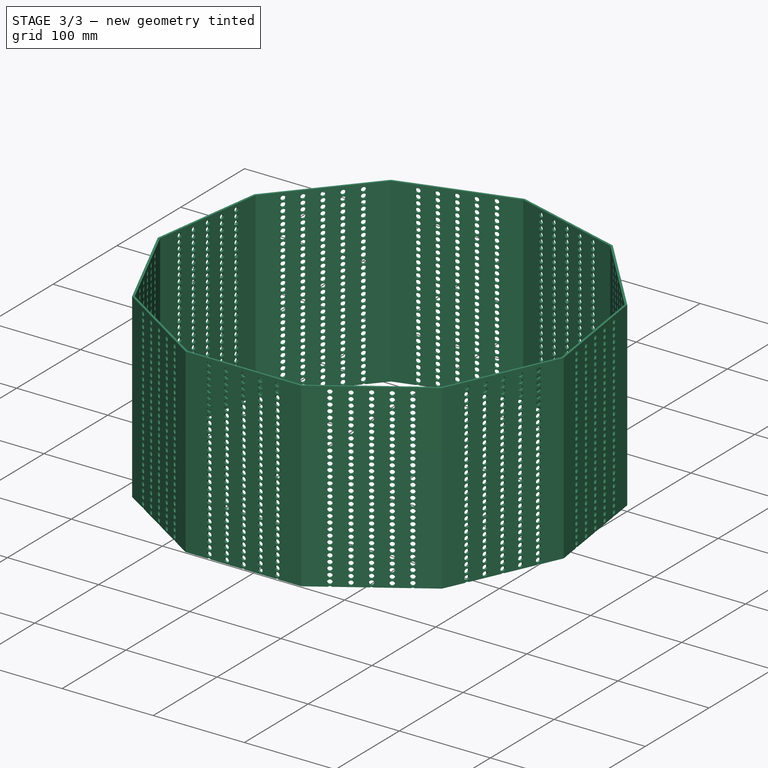
[diagram: stage 3 of 3 — iso view after this stage's code; geometry added in this stage tinted green]
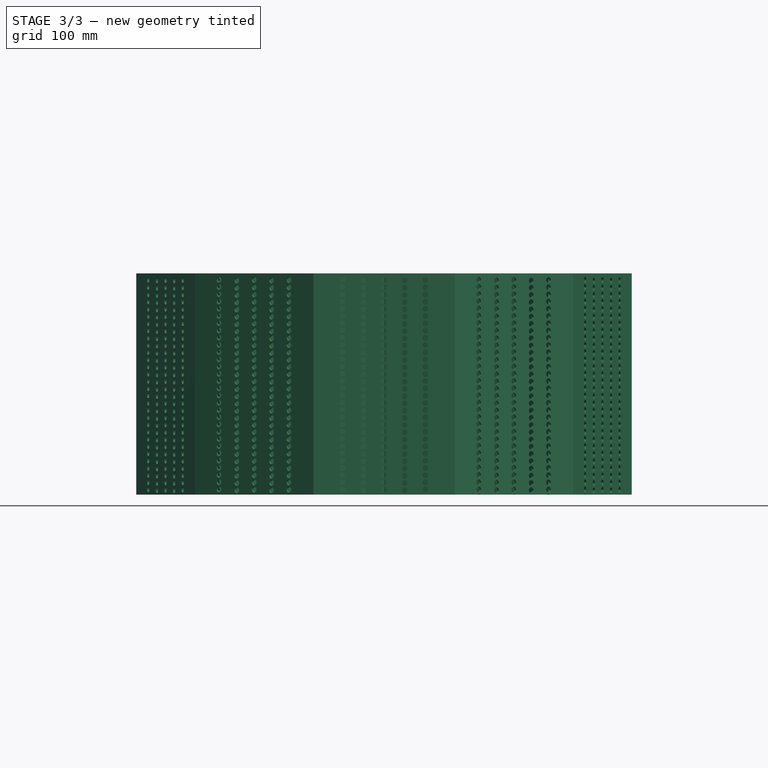
[diagram: stage 3 of 3 — front view after this stage's code; geometry added in this stage tinted green]
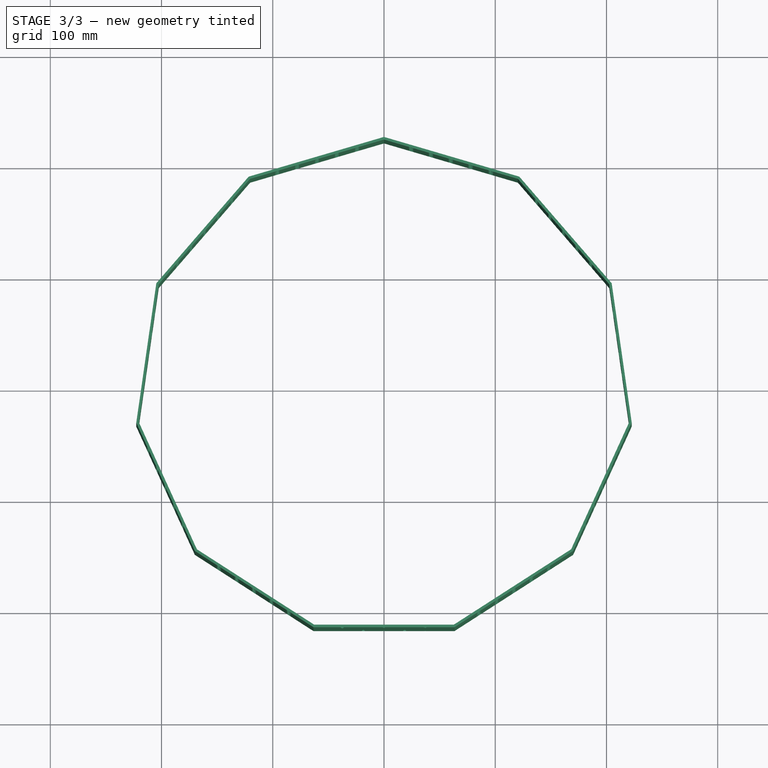
[diagram: stage 3 of 3 — top view after this stage's code; geometry added in this stage tinted green]
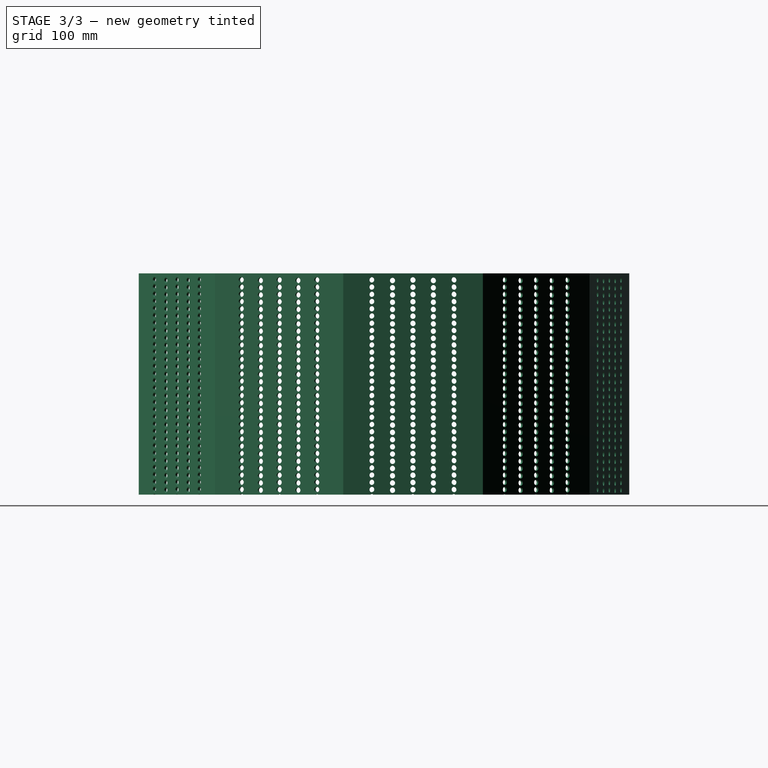
[diagram: stage 3 of 3 — right view after this stage's code; geometry added in this stage tinted green]
FEATURE [PartDesign::PolarPattern] PolarPattern
  Angle = 360
  Axis = -> Z_Axis
  BaseFeature = -> Pocket
  Occurrences = 11
  Originals = -> [Pocket]
FEATURE [Part::Cut] Cut
  Base = -> Body
  Tool = -> Cylinder
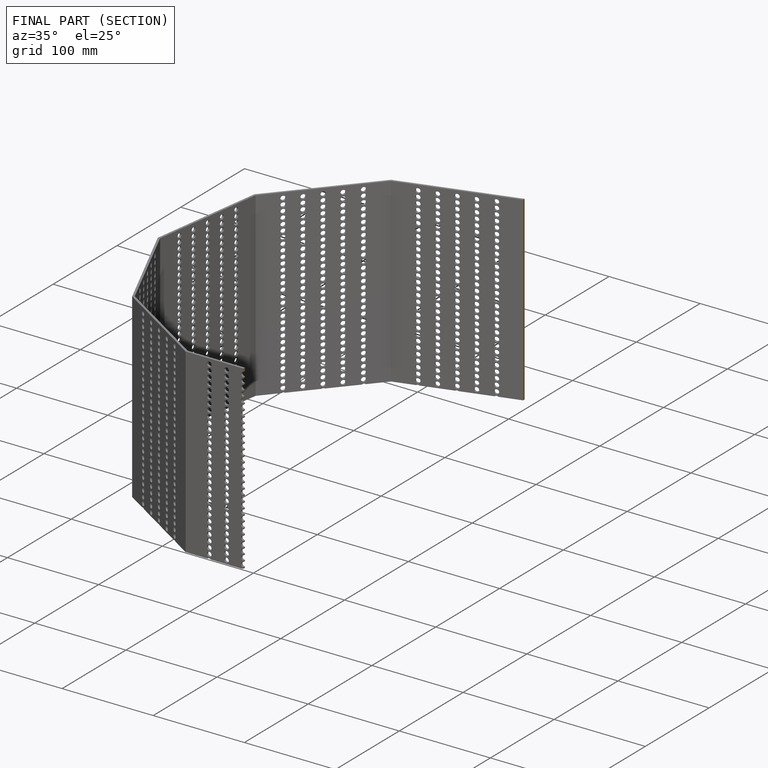
[diagram: finished part — half-section view (interior)]
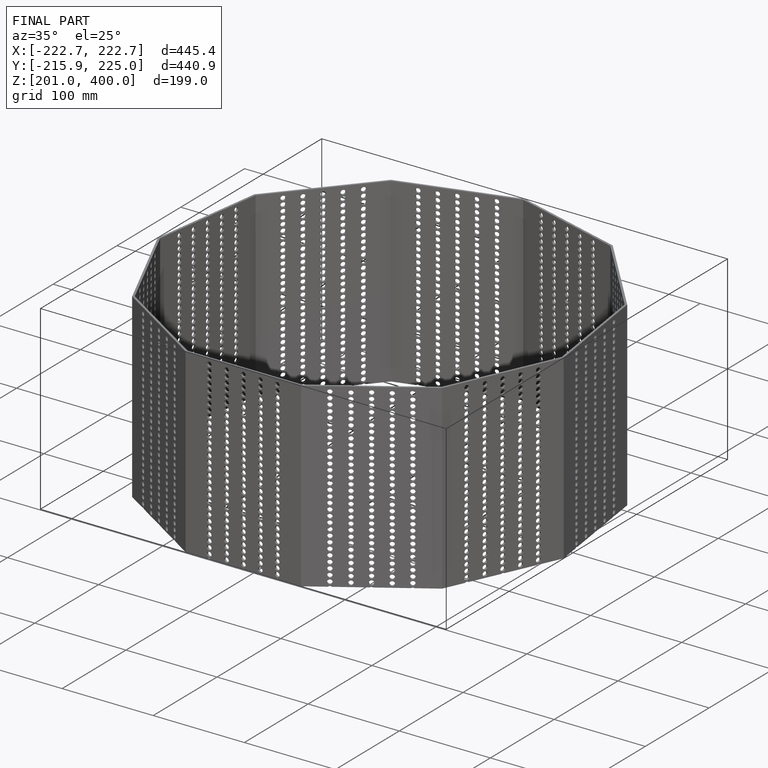
[diagram: finished part — iso view with bounding-box wireframe]
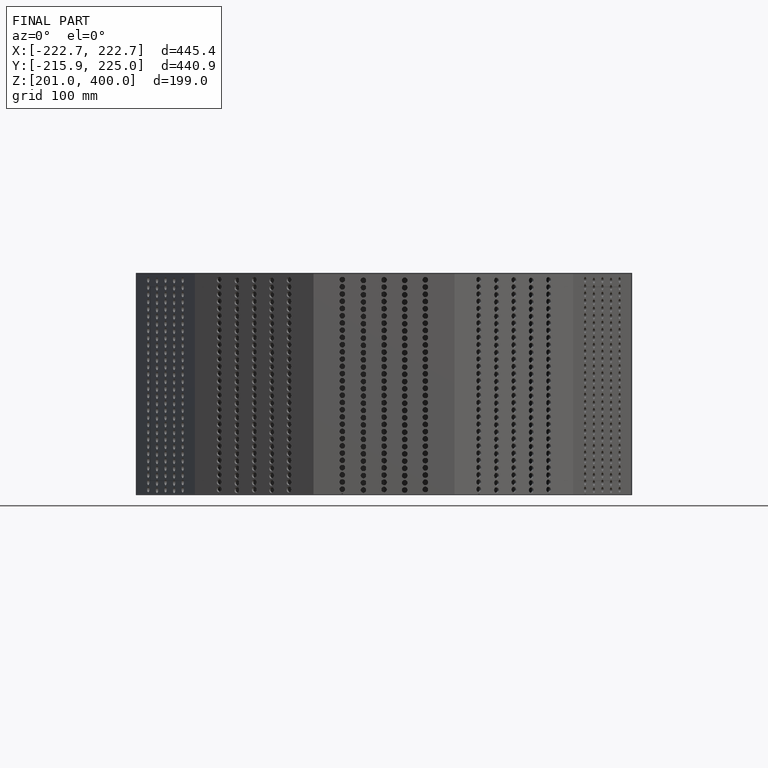
[diagram: finished part — front view with bounding-box wireframe]
